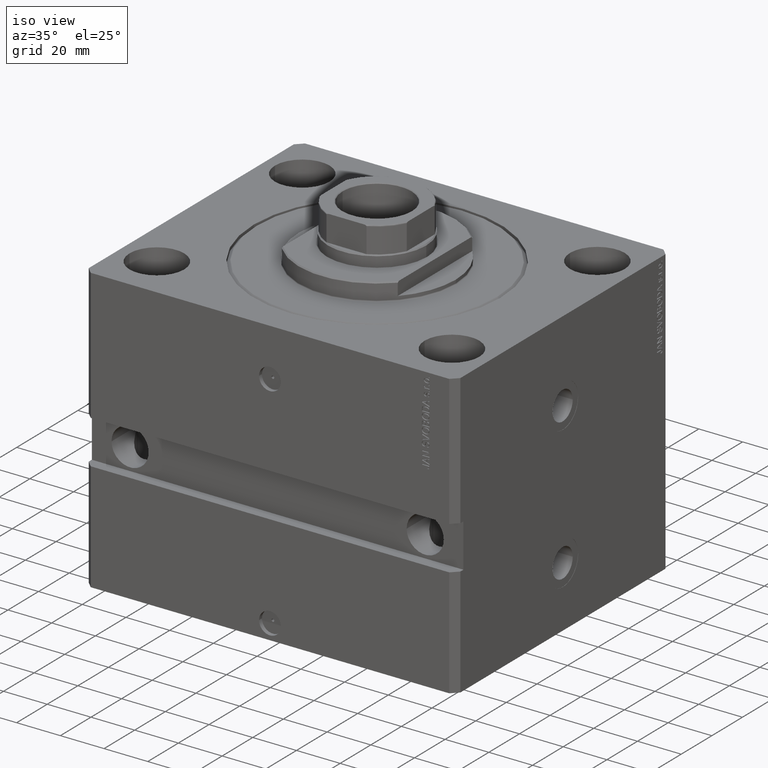
[diagram: clean part render]
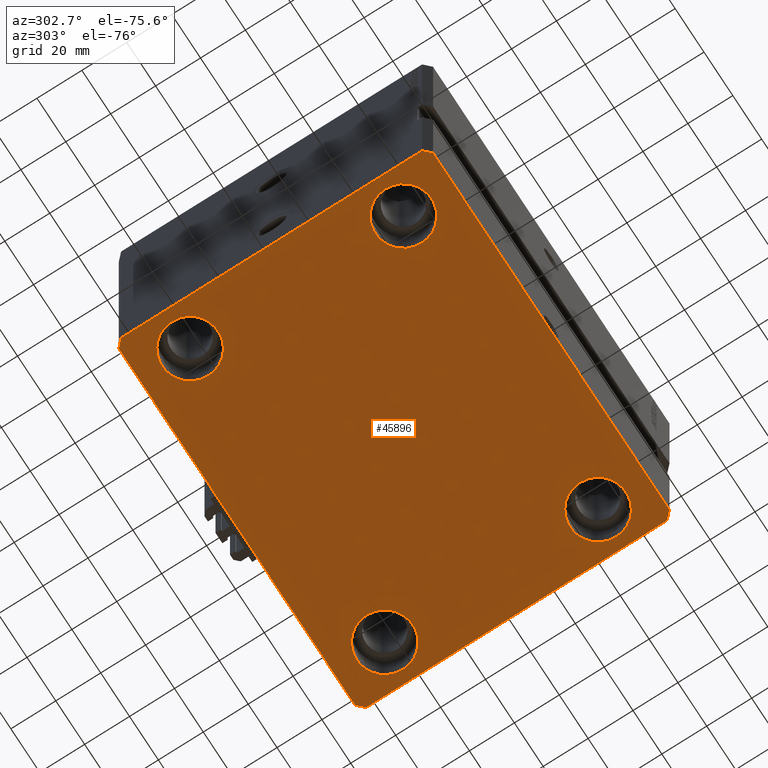
[diagram: tour spotlight — one face highlighted and labeled with its STEP entity id]
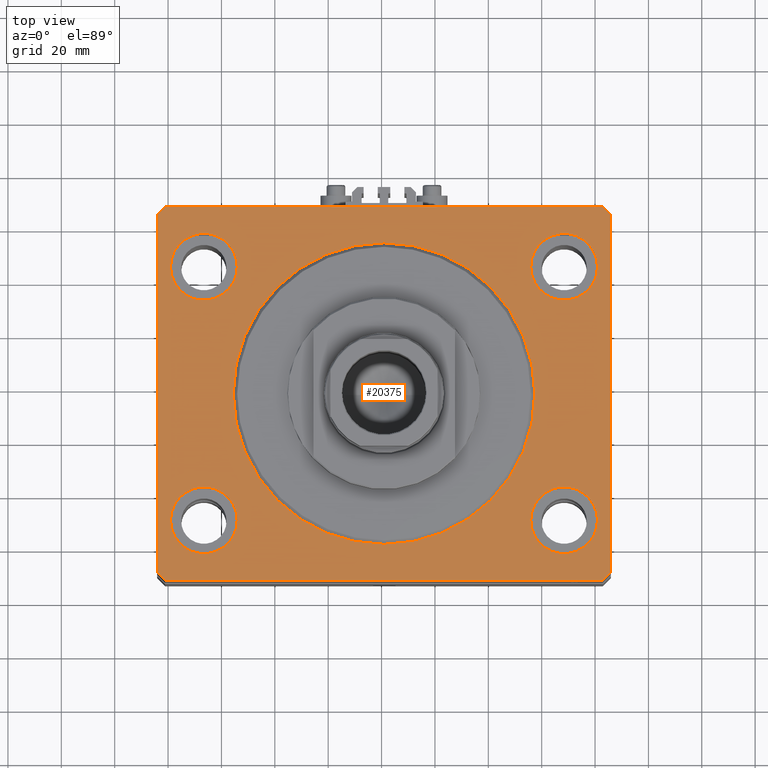
[diagram: tour spotlight — one face highlighted and labeled with its STEP entity id]
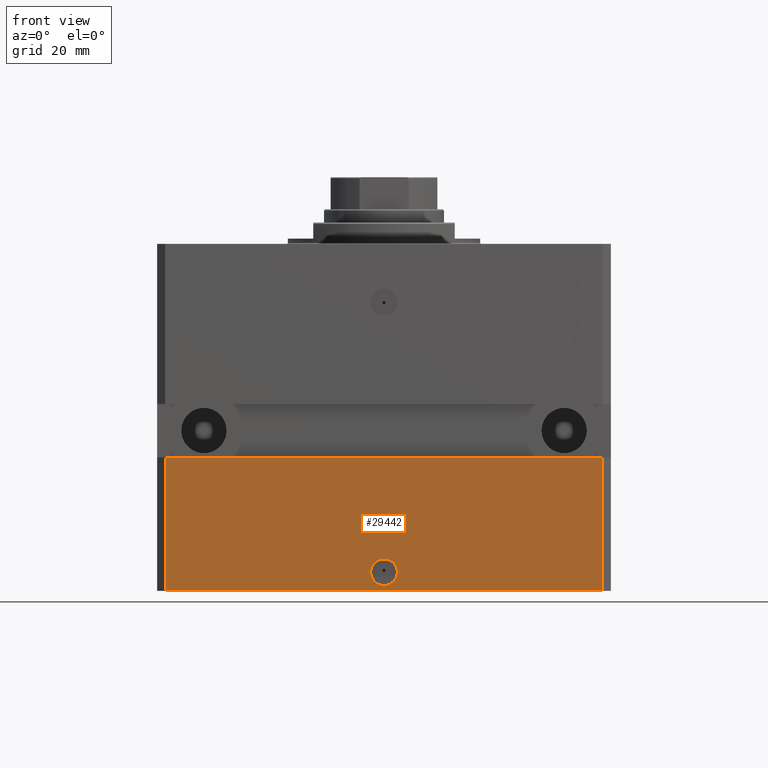
[diagram: tour spotlight — one face highlighted and labeled with its STEP entity id]
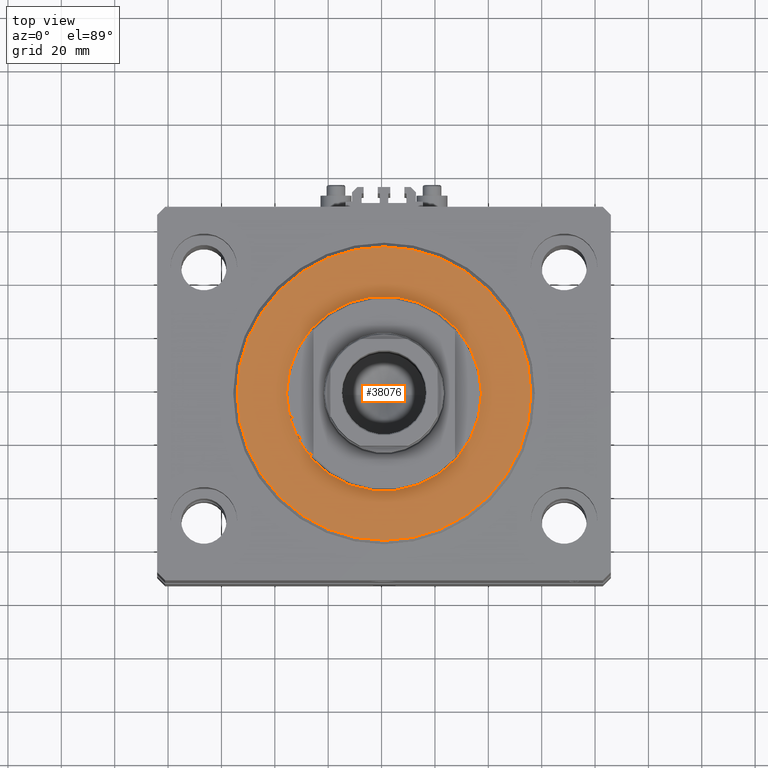
[diagram: tour spotlight — one face highlighted and labeled with its STEP entity id]
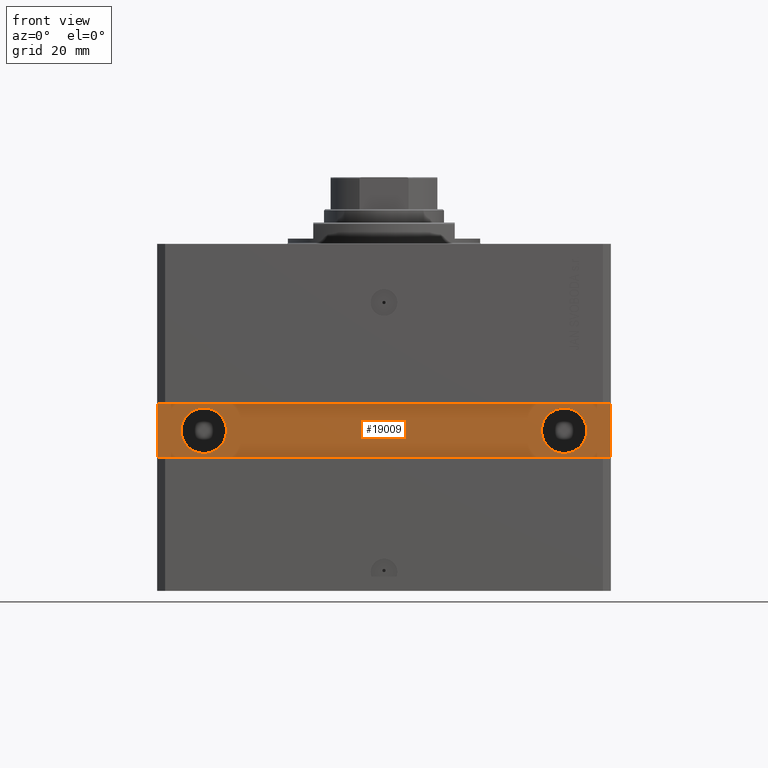
[diagram: tour spotlight — one face highlighted and labeled with its STEP entity id]
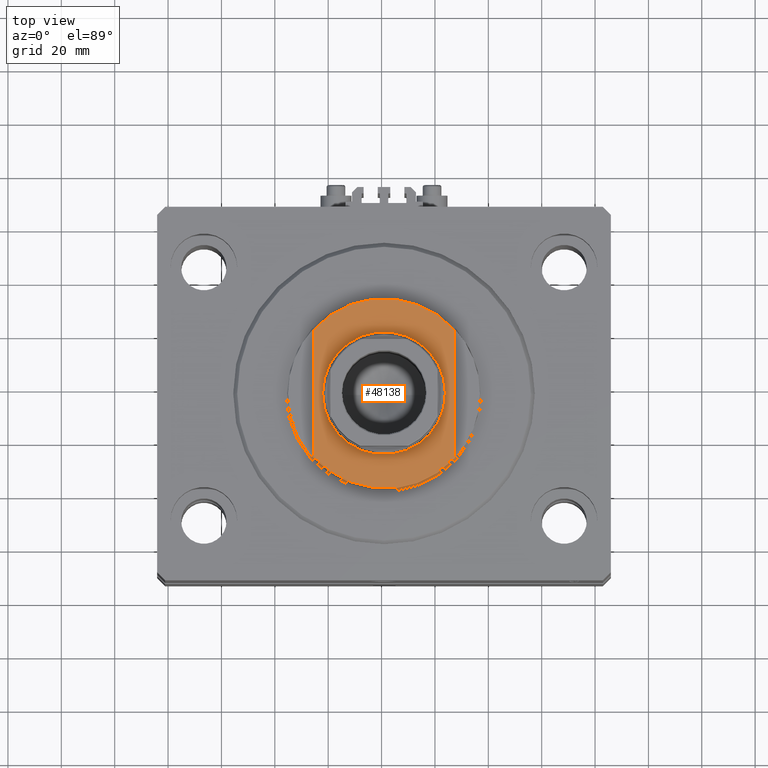
[diagram: tour spotlight — one face highlighted and labeled with its STEP entity id]
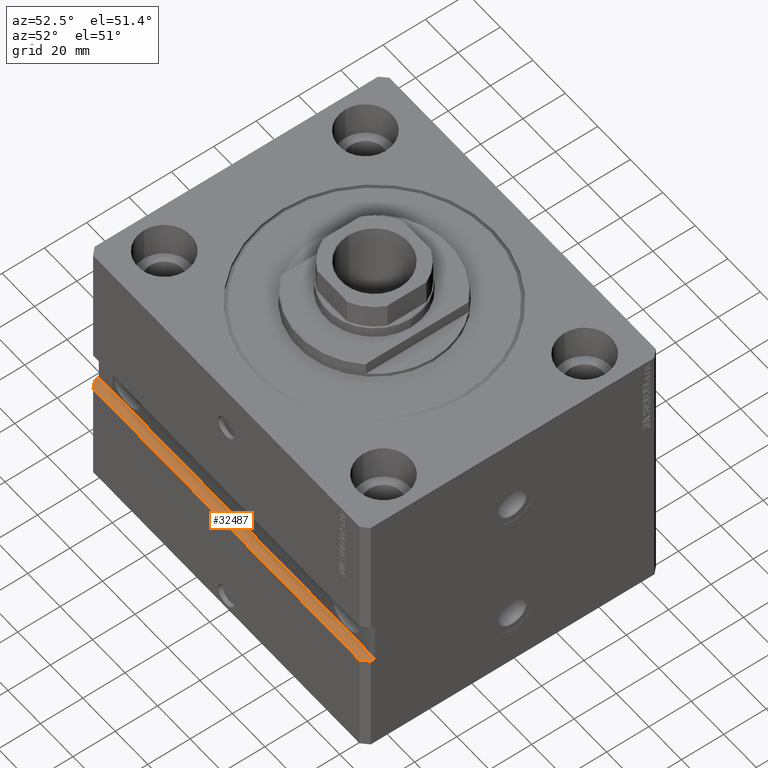
[diagram: tour spotlight — one face highlighted and labeled with its STEP entity id]
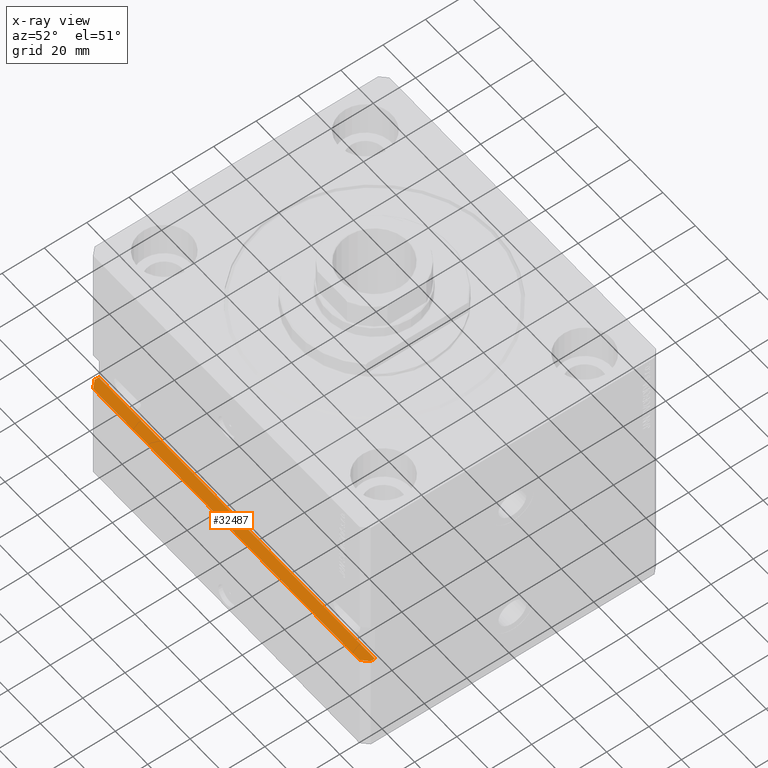
[diagram: x-ray of the same camera — body ghosted, this tour face saturated]
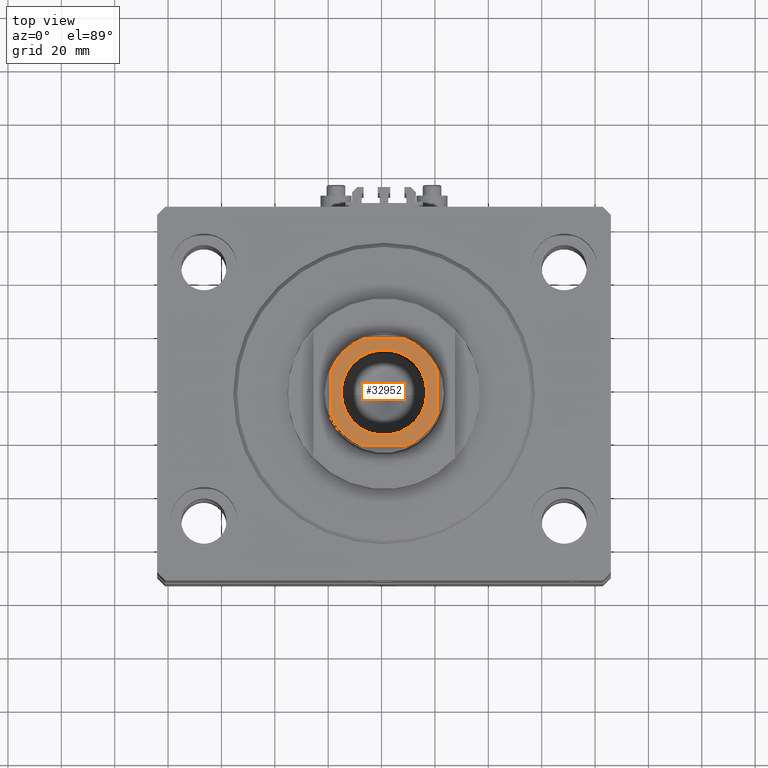
[diagram: tour spotlight — one face highlighted and labeled with its STEP entity id]
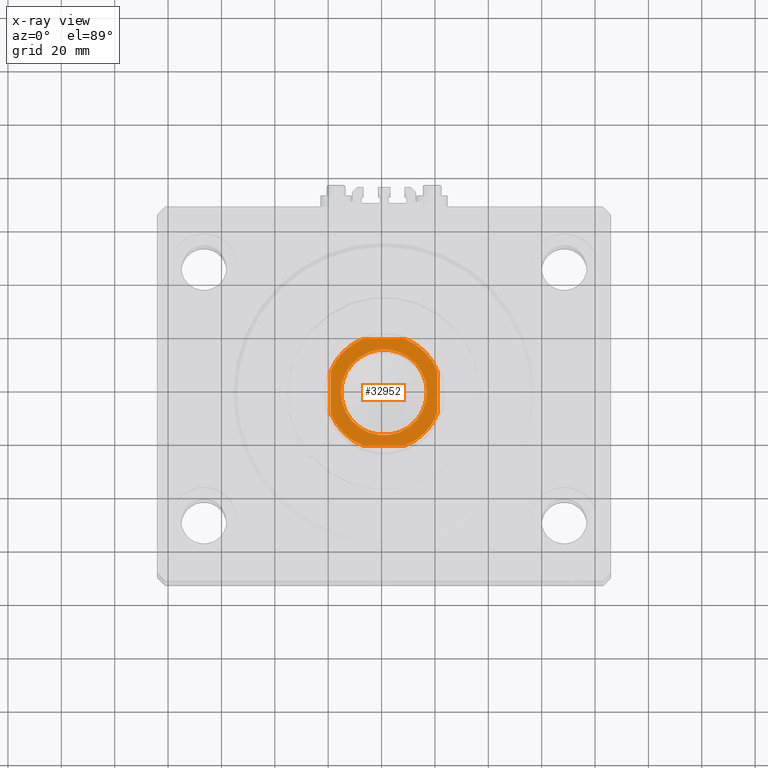
[diagram: x-ray of the same camera — body ghosted, this tour face saturated]
A machine part: a face-by-face anatomy tour. The part has 1121 B-rep faces; the first image is the clean iso view, then the 8 largest visible faces are spotlighted one at a time (largest first), each with its STEP entity span.

Face 1 — auxiliary view, entity #45896. In plain terms, the highlighted planar face has unit normal (0, 0, 1).
Definition (entity closure, byte-faithful):
#54 = VECTOR ( 'NONE', #11263, 1000.000000000000000 ) ;
#225 = CARTESIAN_POINT ( 'NONE',  ( -67.50000000000000000, -47.50000000000000000, -130.0000000000000000 ) ) ;
#262 = VERTEX_POINT ( 'NONE', #35859 ) ;
#365 = CARTESIAN_POINT ( 'NONE',  ( -67.50000000000000000, -47.50000000000000000, -130.0000000000000000 ) ) ;
#528 = CARTESIAN_POINT ( 'NONE',  ( -85.00000000000001421, -67.00000000000000000, -130.0000000000000000 ) ) ;
#529 = VERTEX_POINT ( 'NONE', #8075 ) ;
#537 = CARTESIAN_POINT ( 'NONE',  ( 80.00000000000000000, 47.50000000000001421, -130.0000000000000000 ) ) ;
#1723 = LINE ( 'NONE', #28443, #15962 ) ;
#1796 = ORIENTED_EDGE ( 'NONE', *, *, #16971, .F. ) ;
#1815 = ORIENTED_EDGE ( 'NONE', *, *, #18923, .F. ) ;
#2213 = CARTESIAN_POINT ( 'NONE',  ( 55.00000000000000711, -47.50000000000000000, -130.0000000000000000 ) ) ;
#2248 = VERTEX_POINT ( 'NONE', #34171 ) ;
#2395 = DIRECTION ( 'NONE',  ( 1.000000000000000000, 0.000000000000000000, 0.000000000000000000 ) ) ;
#3019 = EDGE_CURVE ( 'NONE', #38384, #14562, #7381, .T. ) ;
#3117 = CARTESIAN_POINT ( 'NONE',  ( -85.00000000000000000, 67.00000000000000000, -130.0000000000000000 ) ) ;
#3172 = ORIENTED_EDGE ( 'NONE', *, *, #16748, .T. ) ;
#4121 = CARTESIAN_POINT ( 'NONE',  ( -55.00000000000000711, 47.50000000000000000, -130.0000000000000000 ) ) ;
#4420 = CIRCLE ( 'NONE', #26577, 12.49999999999999645 ) ;
#5284 = VECTOR ( 'NONE', #23640, 1000.000000000000000 ) ;
#5480 = ORIENTED_EDGE ( 'NONE', *, *, #38847, .F. ) ;
#5676 = DIRECTION ( 'NONE',  ( -0.000000000000000000, -0.000000000000000000, 1.000000000000000000 ) ) ;
#5701 = VECTOR ( 'NONE', #41313, 1000.000000000000000 ) ;
#5950 = ORIENTED_EDGE ( 'NONE', *, *, #46362, .T. ) ;
#6767 = CIRCLE ( 'NONE', #21773, 12.49999999999999645 ) ;
#7104 = CARTESIAN_POINT ( 'NONE',  ( 0.000000000000000000, 0.000000000000000000, -130.0000000000000000 ) ) ;
#7287 = CARTESIAN_POINT ( 'NONE',  ( 67.50000000000000000, -47.50000000000000000, -130.0000000000000000 ) ) ;
#7381 = LINE ( 'NONE', #44279, #5701 ) ;
#7791 = LINE ( 'NONE', #3117, #54 ) ;
#7896 = CIRCLE ( 'NONE', #37967, 12.49999999999999645 ) ;
#8075 = CARTESIAN_POINT ( 'NONE',  ( -82.00000000000001421, -70.00000000000000000, -130.0000000000000000 ) ) ;
#8341 = AXIS2_PLACEMENT_3D ( 'NONE', #7287, #11753, #48886 ) ;
#8659 = DIRECTION ( 'NONE',  ( 3.935492064902608811E-15, 1.000000000000000000, 0.000000000000000000 ) ) ;
#9154 = EDGE_LOOP ( 'NONE', ( #28245, #15486 ) ) ;
#9644 = DIRECTION ( 'NONE',  ( 1.000000000000000000, 0.000000000000000000, 0.000000000000000000 ) ) ;
#10348 = DIRECTION ( 'NONE',  ( -0.000000000000000000, -0.000000000000000000, 1.000000000000000000 ) ) ;
#10376 = DIRECTION ( 'NONE',  ( -0.7071067811865344721, 0.7071067811865606734, 0.000000000000000000 ) ) ;
#10500 = CARTESIAN_POINT ( 'NONE',  ( 80.00000000000000000, -47.50000000000000000, -130.0000000000000000 ) ) ;
#10831 = FACE_OUTER_BOUND ( 'NONE', #48913, .T. ) ;
#11263 = DIRECTION ( 'NONE',  ( -1.035655806553317576E-16, -1.000000000000000000, 0.000000000000000000 ) ) ;
#11491 = CARTESIAN_POINT ( 'NONE',  ( -55.00000000000000711, -47.50000000000000000, -130.0000000000000000 ) ) ;
#11494 = AXIS2_PLACEMENT_3D ( 'NONE', #7104, #33123, #29394 ) ;
#11690 = ORIENTED_EDGE ( 'NONE', *, *, #21750, .F. ) ;
#11753 = DIRECTION ( 'NONE',  ( -0.000000000000000000, -0.000000000000000000, 1.000000000000000000 ) ) ;
#11892 = DIRECTION ( 'NONE',  ( 0.7071067811865474617, -0.7071067811865474617, 0.000000000000000000 ) ) ;
#12136 = VERTEX_POINT ( 'NONE', #10500 ) ;
#12792 = EDGE_CURVE ( 'NONE', #20377, #38384, #41323, .T. ) ;
#12884 = DIRECTION ( 'NONE',  ( 1.000000000000000000, 0.000000000000000000, 0.000000000000000000 ) ) ;
#14045 = FACE_BOUND ( 'NONE', #15699, .T. ) ;
#14117 = EDGE_CURVE ( 'NONE', #28733, #262, #44167, .T. ) ;
#14298 = EDGE_LOOP ( 'NONE', ( #19418, #21834 ) ) ;
#14459 = DIRECTION ( 'NONE',  ( -0.000000000000000000, -0.000000000000000000, 1.000000000000000000 ) ) ;
#14562 = VERTEX_POINT ( 'NONE', #46310 ) ;
#15060 = CARTESIAN_POINT ( 'NONE',  ( 85.00000000000055422, 66.99999999999997158, -130.0000000000000000 ) ) ;
#15062 = VERTEX_POINT ( 'NONE', #44004 ) ;
#15418 = VECTOR ( 'NONE', #8659, 1000.000000000000000 ) ;
#15486 = ORIENTED_EDGE ( 'NONE', *, *, #29185, .T. ) ;
#15699 = EDGE_LOOP ( 'NONE', ( #5950, #17396 ) ) ;
#15892 = ORIENTED_EDGE ( 'NONE', *, *, #17370, .F. ) ;
#15962 = VECTOR ( 'NONE', #31927, 1000.000000000000000 ) ;
#16236 = EDGE_LOOP ( 'NONE', ( #3172, #48843 ) ) ;
#16595 = VECTOR ( 'NONE', #32887, 1000.000000000000114 ) ;
#16748 = EDGE_CURVE ( 'NONE', #48947, #41347, #7896, .T. ) ;
#16971 = EDGE_CURVE ( 'NONE', #14562, #15062, #18014, .T. ) ;
#17370 = EDGE_CURVE ( 'NONE', #15062, #2248, #7791, .T. ) ;
#17396 = ORIENTED_EDGE ( 'NONE', *, *, #36879, .T. ) ;
#18003 = PLANE ( 'NONE',  #11494 ) ;
#18014 = LINE ( 'NONE', #33133, #16595 ) ;
#18518 = CARTESIAN_POINT ( 'NONE',  ( 82.00000000000001421, -70.00000000000000000, -130.0000000000000000 ) ) ;
#18923 = EDGE_CURVE ( 'NONE', #2248, #529, #34423, .T. ) ;
#19418 = ORIENTED_EDGE ( 'NONE', *, *, #22028, .T. ) ;
#20377 = VERTEX_POINT ( 'NONE', #37473 ) ;
#20771 = VERTEX_POINT ( 'NONE', #18518 ) ;
#21215 = AXIS2_PLACEMENT_3D ( 'NONE', #365, #14459, #22859 ) ;
#21240 = DIRECTION ( 'NONE',  ( 1.000000000000000000, 0.000000000000000000, 0.000000000000000000 ) ) ;
#21750 = EDGE_CURVE ( 'NONE', #529, #20771, #1723, .T. ) ;
#21773 = AXIS2_PLACEMENT_3D ( 'NONE', #47024, #5676, #9644 ) ;
#21834 = ORIENTED_EDGE ( 'NONE', *, *, #14117, .T. ) ;
#22028 = EDGE_CURVE ( 'NONE', #262, #28733, #35771, .T. ) ;
#22859 = DIRECTION ( 'NONE',  ( 1.000000000000000000, 0.000000000000000000, 0.000000000000000000 ) ) ;
#23513 = LINE ( 'NONE', #46291, #15418 ) ;
#23640 = DIRECTION ( 'NONE',  ( 0.7071067811865459074, 0.7071067811865491270, 0.000000000000000000 ) ) ;
#25122 = VERTEX_POINT ( 'NONE', #43662 ) ;
#26467 = CARTESIAN_POINT ( 'NONE',  ( 67.50000000000000000, 47.50000000000001421, -130.0000000000000000 ) ) ;
#26577 = AXIS2_PLACEMENT_3D ( 'NONE', #36400, #39870, #12884 ) ;
#28245 = ORIENTED_EDGE ( 'NONE', *, *, #33570, .T. ) ;
#28384 = DIRECTION ( 'NONE',  ( -0.000000000000000000, -0.000000000000000000, 1.000000000000000000 ) ) ;
#28443 = CARTESIAN_POINT ( 'NONE',  ( -82.00000000000001421, -70.00000000000000000, -130.0000000000000000 ) ) ;
#28733 = VERTEX_POINT ( 'NONE', #11491 ) ;
#29144 = FACE_BOUND ( 'NONE', #16236, .T. ) ;
#29185 = EDGE_CURVE ( 'NONE', #38004, #32632, #33532, .T. ) ;
#29394 = DIRECTION ( 'NONE',  ( 1.000000000000000000, 0.000000000000000000, -0.000000000000000000 ) ) ;
#29650 = ORIENTED_EDGE ( 'NONE', *, *, #41315, .F. ) ;
#29658 = CARTESIAN_POINT ( 'NONE',  ( -67.50000000000000000, 47.50000000000000000, -130.0000000000000000 ) ) ;
#31927 = DIRECTION ( 'NONE',  ( 1.000000000000000000, 0.000000000000000000, 0.000000000000000000 ) ) ;
#32632 = VERTEX_POINT ( 'NONE', #37075 ) ;
#32887 = DIRECTION ( 'NONE',  ( -0.7071067811865474617, -0.7071067811865474617, 0.000000000000000000 ) ) ;
#32894 = AXIS2_PLACEMENT_3D ( 'NONE', #29658, #10348, #21240 ) ;
#33123 = DIRECTION ( 'NONE',  ( 0.000000000000000000, 0.000000000000000000, 1.000000000000000000 ) ) ;
#33133 = CARTESIAN_POINT ( 'NONE',  ( -82.00000000000000000, 70.00000000000000000, -130.0000000000000000 ) ) ;
#33240 = ORIENTED_EDGE ( 'NONE', *, *, #3019, .F. ) ;
#33532 = CIRCLE ( 'NONE', #41449, 12.49999999999999645 ) ;
#33570 = EDGE_CURVE ( 'NONE', #32632, #38004, #48682, .T. ) ;
#34171 = CARTESIAN_POINT ( 'NONE',  ( -85.00000000000001421, -67.00000000000000000, -130.0000000000000000 ) ) ;
#34423 = LINE ( 'NONE', #528, #41983 ) ;
#35184 = VERTEX_POINT ( 'NONE', #2213 ) ;
#35771 = CIRCLE ( 'NONE', #38136, 12.49999999999999645 ) ;
#35787 = CARTESIAN_POINT ( 'NONE',  ( 82.00000000000001421, -70.00000000000000000, -130.0000000000000000 ) ) ;
#35859 = CARTESIAN_POINT ( 'NONE',  ( -80.00000000000000000, -47.50000000000000000, -130.0000000000000000 ) ) ;
#36235 = VECTOR ( 'NONE', #10376, 1000.000000000000000 ) ;
#36400 = CARTESIAN_POINT ( 'NONE',  ( 67.50000000000000000, 47.50000000000001421, -130.0000000000000000 ) ) ;
#36845 = FACE_BOUND ( 'NONE', #9154, .T. ) ;
#36879 = EDGE_CURVE ( 'NONE', #12136, #35184, #6767, .T. ) ;
#37075 = CARTESIAN_POINT ( 'NONE',  ( -80.00000000000000000, 47.50000000000000000, -130.0000000000000000 ) ) ;
#37473 = CARTESIAN_POINT ( 'NONE',  ( 85.00000000000055422, 66.99999999999997158, -130.0000000000000000 ) ) ;
#37650 = DIRECTION ( 'NONE',  ( 1.000000000000000000, 0.000000000000000000, 0.000000000000000000 ) ) ;
#37967 = AXIS2_PLACEMENT_3D ( 'NONE', #26467, #41349, #37650 ) ;
#38004 = VERTEX_POINT ( 'NONE', #4121 ) ;
#38136 = AXIS2_PLACEMENT_3D ( 'NONE', #225, #28384, #2395 ) ;
#38384 = VERTEX_POINT ( 'NONE', #43827 ) ;
#38847 = EDGE_CURVE ( 'NONE', #20771, #25122, #46172, .T. ) ;
#39154 = DIRECTION ( 'NONE',  ( -0.000000000000000000, -0.000000000000000000, 1.000000000000000000 ) ) ;
#39636 = CARTESIAN_POINT ( 'NONE',  ( -67.50000000000000000, 47.50000000000000000, -130.0000000000000000 ) ) ;
#39870 = DIRECTION ( 'NONE',  ( -0.000000000000000000, -0.000000000000000000, 1.000000000000000000 ) ) ;
#40548 = CARTESIAN_POINT ( 'NONE',  ( 55.00000000000000711, 47.50000000000001421, -130.0000000000000000 ) ) ;
#40765 = CIRCLE ( 'NONE', #8341, 12.49999999999999645 ) ;
#41313 = DIRECTION ( 'NONE',  ( -1.000000000000000000, -1.692413147294439807E-16, 0.000000000000000000 ) ) ;
#41315 = EDGE_CURVE ( 'NONE', #25122, #20377, #23513, .T. ) ;
#41323 = LINE ( 'NONE', #15060, #36235 ) ;
#41347 = VERTEX_POINT ( 'NONE', #537 ) ;
#41349 = DIRECTION ( 'NONE',  ( -0.000000000000000000, -0.000000000000000000, 1.000000000000000000 ) ) ;
#41449 = AXIS2_PLACEMENT_3D ( 'NONE', #39636, #39154, #43103 ) ;
#41983 = VECTOR ( 'NONE', #11892, 1000.000000000000114 ) ;
#42157 = ORIENTED_EDGE ( 'NONE', *, *, #12792, .F. ) ;
#43103 = DIRECTION ( 'NONE',  ( 1.000000000000000000, 0.000000000000000000, 0.000000000000000000 ) ) ;
#43662 = CARTESIAN_POINT ( 'NONE',  ( 85.00000000000001421, -66.99999999999998579, -130.0000000000000000 ) ) ;
#43827 = CARTESIAN_POINT ( 'NONE',  ( 82.00000000000059686, 70.00000000000002842, -130.0000000000000000 ) ) ;
#44004 = CARTESIAN_POINT ( 'NONE',  ( -85.00000000000000000, 67.00000000000000000, -130.0000000000000000 ) ) ;
#44167 = CIRCLE ( 'NONE', #21215, 12.49999999999999645 ) ;
#44279 = CARTESIAN_POINT ( 'NONE',  ( 82.00000000000059686, 70.00000000000002842, -130.0000000000000000 ) ) ;
#45896 = ADVANCED_FACE ( 'NONE', ( #47959, #14045, #29144, #36845, #10831 ), #18003, .F. ) ;
#46172 = LINE ( 'NONE', #35787, #5284 ) ;
#46291 = CARTESIAN_POINT ( 'NONE',  ( 85.00000000000001421, -66.99999999999998579, -130.0000000000000000 ) ) ;
#46310 = CARTESIAN_POINT ( 'NONE',  ( -82.00000000000000000, 70.00000000000000000, -130.0000000000000000 ) ) ;
#46362 = EDGE_CURVE ( 'NONE', #35184, #12136, #40765, .T. ) ;
#47024 = CARTESIAN_POINT ( 'NONE',  ( 67.50000000000000000, -47.50000000000000000, -130.0000000000000000 ) ) ;
#47534 = EDGE_CURVE ( 'NONE', #41347, #48947, #4420, .T. ) ;
#47959 = FACE_BOUND ( 'NONE', #14298, .T. ) ;
#48682 = CIRCLE ( 'NONE', #32894, 12.49999999999999645 ) ;
#48843 = ORIENTED_EDGE ( 'NONE', *, *, #47534, .T. ) ;
#48886 = DIRECTION ( 'NONE',  ( 1.000000000000000000, 0.000000000000000000, 0.000000000000000000 ) ) ;
#48913 = EDGE_LOOP ( 'NONE', ( #33240, #42157, #29650, #5480, #11690, #1815, #15892, #1796 ) ) ;
#48947 = VERTEX_POINT ( 'NONE', #40548 ) ;

Face 2 — top view, entity #20375. In plain terms, the highlighted planar face has unit normal (0, 0, 1).
Definition (entity closure, byte-faithful):
#412 = CARTESIAN_POINT ( 'NONE',  ( -67.50000000000000000, -47.50000000000000000, 0.000000000000000000 ) ) ;
#534 = AXIS2_PLACEMENT_3D ( 'NONE', #28858, #9323, #28374 ) ;
#1425 = CARTESIAN_POINT ( 'NONE',  ( -82.00000000000001421, -70.00000000000000000, 0.000000000000000000 ) ) ;
#1464 = CARTESIAN_POINT ( 'NONE',  ( 85.00000000000001421, -66.99999999999998579, 0.000000000000000000 ) ) ;
#1621 = DIRECTION ( 'NONE',  ( 0.000000000000000000, 0.000000000000000000, 1.000000000000000000 ) ) ;
#2238 = ORIENTED_EDGE ( 'NONE', *, *, #39210, .T. ) ;
#2404 = CARTESIAN_POINT ( 'NONE',  ( 85.00000000000055422, 66.99999999999997158, 0.000000000000000000 ) ) ;
#2482 = EDGE_CURVE ( 'NONE', #44134, #6214, #21924, .T. ) ;
#2532 = CIRCLE ( 'NONE', #19137, 56.50000000000000711 ) ;
#3435 = DIRECTION ( 'NONE',  ( 1.000000000000000000, 0.000000000000000000, 0.000000000000000000 ) ) ;
#3777 = CARTESIAN_POINT ( 'NONE',  ( 82.00000000000059686, 70.00000000000002842, 0.000000000000000000 ) ) ;
#3796 = DIRECTION ( 'NONE',  ( 0.000000000000000000, 0.000000000000000000, 1.000000000000000000 ) ) ;
#3883 = ORIENTED_EDGE ( 'NONE', *, *, #5927, .T. ) ;
#3948 = ORIENTED_EDGE ( 'NONE', *, *, #6309, .F. ) ;
#4166 = DIRECTION ( 'NONE',  ( 1.000000000000000000, 0.000000000000000000, 0.000000000000000000 ) ) ;
#4265 = CIRCLE ( 'NONE', #35082, 12.49999999999999645 ) ;
#4824 = DIRECTION ( 'NONE',  ( 1.000000000000000000, 0.000000000000000000, 0.000000000000000000 ) ) ;
#5078 = VERTEX_POINT ( 'NONE', #29011 ) ;
#5104 = VECTOR ( 'NONE', #43505, 1000.000000000000000 ) ;
#5212 = VECTOR ( 'NONE', #47914, 1000.000000000000000 ) ;
#5576 = VERTEX_POINT ( 'NONE', #35548 ) ;
#5616 = VERTEX_POINT ( 'NONE', #33789 ) ;
#5843 = CARTESIAN_POINT ( 'NONE',  ( 0.000000000000000000, 0.000000000000000000, 0.000000000000000000 ) ) ;
#5927 = EDGE_CURVE ( 'NONE', #42755, #46676, #30983, .T. ) ;
#6111 = CIRCLE ( 'NONE', #13989, 12.49999999999999645 ) ;
#6214 = VERTEX_POINT ( 'NONE', #1425 ) ;
#6229 = CARTESIAN_POINT ( 'NONE',  ( -56.50000000000000711, 6.919254415182546126E-15, 0.000000000000000000 ) ) ;
#6309 = EDGE_CURVE ( 'NONE', #29455, #5616, #4265, .T. ) ;
#6768 = PLANE ( 'NONE',  #30164 ) ;
#6826 = CARTESIAN_POINT ( 'NONE',  ( -85.00000000000001421, -67.00000000000000000, 0.000000000000000000 ) ) ;
#6831 = CIRCLE ( 'NONE', #534, 56.50000000000000711 ) ;
#6895 = CARTESIAN_POINT ( 'NONE',  ( -67.50000000000000000, -47.50000000000000000, 0.000000000000000000 ) ) ;
#7179 = LINE ( 'NONE', #34164, #16343 ) ;
#7492 = LINE ( 'NONE', #19116, #5212 ) ;
#7659 = ORIENTED_EDGE ( 'NONE', *, *, #44104, .F. ) ;
#8240 = EDGE_CURVE ( 'NONE', #13600, #42755, #29376, .T. ) ;
#8799 = ORIENTED_EDGE ( 'NONE', *, *, #17737, .F. ) ;
#8812 = AXIS2_PLACEMENT_3D ( 'NONE', #13741, #40011, #14235 ) ;
#9105 = VERTEX_POINT ( 'NONE', #34039 ) ;
#9126 = CIRCLE ( 'NONE', #29704, 12.49999999999999645 ) ;
#9248 = EDGE_LOOP ( 'NONE', ( #16021, #45570 ) ) ;
#9323 = DIRECTION ( 'NONE',  ( 0.000000000000000000, 0.000000000000000000, 1.000000000000000000 ) ) ;
#9818 = DIRECTION ( 'NONE',  ( 1.000000000000000000, 0.000000000000000000, 0.000000000000000000 ) ) ;
#9883 = DIRECTION ( 'NONE',  ( 1.000000000000000000, 0.000000000000000000, 0.000000000000000000 ) ) ;
#10305 = DIRECTION ( 'NONE',  ( 0.000000000000000000, 0.000000000000000000, 1.000000000000000000 ) ) ;
#10471 = DIRECTION ( 'NONE',  ( 1.000000000000000000, 0.000000000000000000, 0.000000000000000000 ) ) ;
#10727 = FACE_BOUND ( 'NONE', #31490, .T. ) ;
#11191 = CARTESIAN_POINT ( 'NONE',  ( 85.00000000000001421, -66.99999999999998579, 0.000000000000000000 ) ) ;
#11229 = CIRCLE ( 'NONE', #42044, 12.49999999999999645 ) ;
#11440 = DIRECTION ( 'NONE',  ( 3.935492064902608811E-15, 1.000000000000000000, 0.000000000000000000 ) ) ;
#11675 = ORIENTED_EDGE ( 'NONE', *, *, #11820, .F. ) ;
#11820 = EDGE_CURVE ( 'NONE', #40445, #5078, #6111, .T. ) ;
#12459 = CARTESIAN_POINT ( 'NONE',  ( 55.00000000000000711, -47.50000000000000000, 0.000000000000000000 ) ) ;
#12482 = VERTEX_POINT ( 'NONE', #6229 ) ;
#12557 = DIRECTION ( 'NONE',  ( 0.000000000000000000, 0.000000000000000000, 1.000000000000000000 ) ) ;
#13100 = EDGE_LOOP ( 'NONE', ( #8799, #17854 ) ) ;
#13600 = VERTEX_POINT ( 'NONE', #18059 ) ;
#13741 = CARTESIAN_POINT ( 'NONE',  ( 67.50000000000000000, 47.50000000000001421, 0.000000000000000000 ) ) ;
#13989 = AXIS2_PLACEMENT_3D ( 'NONE', #33104, #10305, #9818 ) ;
#14185 = CARTESIAN_POINT ( 'NONE',  ( 67.50000000000000000, -47.50000000000000000, 0.000000000000000000 ) ) ;
#14235 = DIRECTION ( 'NONE',  ( 1.000000000000000000, 0.000000000000000000, 0.000000000000000000 ) ) ;
#15488 = DIRECTION ( 'NONE',  ( 0.000000000000000000, 0.000000000000000000, 1.000000000000000000 ) ) ;
#15638 = DIRECTION ( 'NONE',  ( -1.000000000000000000, -1.692413147294439807E-16, 0.000000000000000000 ) ) ;
#15974 = DIRECTION ( 'NONE',  ( 0.000000000000000000, 0.000000000000000000, 1.000000000000000000 ) ) ;
#15982 = EDGE_CURVE ( 'NONE', #5078, #40445, #16562, .T. ) ;
#16021 = ORIENTED_EDGE ( 'NONE', *, *, #31609, .F. ) ;
#16127 = VECTOR ( 'NONE', #17162, 1000.000000000000114 ) ;
#16343 = VECTOR ( 'NONE', #48528, 1000.000000000000000 ) ;
#16562 = CIRCLE ( 'NONE', #30813, 12.49999999999999645 ) ;
#16634 = EDGE_CURVE ( 'NONE', #6214, #37898, #39615, .T. ) ;
#17162 = DIRECTION ( 'NONE',  ( -0.7071067811865474617, -0.7071067811865474617, 0.000000000000000000 ) ) ;
#17207 = CARTESIAN_POINT ( 'NONE',  ( 67.50000000000000000, -47.50000000000000000, 0.000000000000000000 ) ) ;
#17296 = DIRECTION ( 'NONE',  ( 0.7071067811865474617, -0.7071067811865474617, 0.000000000000000000 ) ) ;
#17662 = ORIENTED_EDGE ( 'NONE', *, *, #21006, .F. ) ;
#17737 = EDGE_CURVE ( 'NONE', #44155, #36120, #34063, .T. ) ;
#17854 = ORIENTED_EDGE ( 'NONE', *, *, #37151, .F. ) ;
#18059 = CARTESIAN_POINT ( 'NONE',  ( 85.00000000000055422, 66.99999999999997158, 0.000000000000000000 ) ) ;
#18143 = FACE_BOUND ( 'NONE', #9248, .T. ) ;
#18572 = AXIS2_PLACEMENT_3D ( 'NONE', #20898, #15974, #42476 ) ;
#19099 = CIRCLE ( 'NONE', #8812, 12.49999999999999645 ) ;
#19116 = CARTESIAN_POINT ( 'NONE',  ( 82.00000000000001421, -70.00000000000000000, 0.000000000000000000 ) ) ;
#19137 = AXIS2_PLACEMENT_3D ( 'NONE', #5843, #12557, #47419 ) ;
#19403 = ORIENTED_EDGE ( 'NONE', *, *, #8240, .T. ) ;
#19460 = EDGE_LOOP ( 'NONE', ( #3883, #31317, #2238, #21705, #26858, #25282, #35188, #19403 ) ) ;
#20375 = ADVANCED_FACE ( 'NONE', ( #10727, #25825, #18143, #22595, #30270, #40937 ), #6768, .T. ) ;
#20798 = EDGE_CURVE ( 'NONE', #5616, #29455, #11229, .T. ) ;
#20807 = CARTESIAN_POINT ( 'NONE',  ( -82.00000000000000000, 70.00000000000000000, 0.000000000000000000 ) ) ;
#20898 = CARTESIAN_POINT ( 'NONE',  ( 67.50000000000000000, 47.50000000000001421, 0.000000000000000000 ) ) ;
#21006 = EDGE_CURVE ( 'NONE', #42558, #12482, #2532, .T. ) ;
#21705 = ORIENTED_EDGE ( 'NONE', *, *, #2482, .T. ) ;
#21924 = LINE ( 'NONE', #6826, #42859 ) ;
#22595 = FACE_BOUND ( 'NONE', #30668, .T. ) ;
#22928 = CARTESIAN_POINT ( 'NONE',  ( -67.50000000000000000, 47.50000000000000000, 0.000000000000000000 ) ) ;
#23504 = EDGE_CURVE ( 'NONE', #30341, #13600, #45103, .T. ) ;
#23717 = VECTOR ( 'NONE', #9883, 1000.000000000000000 ) ;
#23977 = CARTESIAN_POINT ( 'NONE',  ( 82.00000000000059686, 70.00000000000002842, 0.000000000000000000 ) ) ;
#24019 = EDGE_CURVE ( 'NONE', #9105, #33224, #19099, .T. ) ;
#24172 = CARTESIAN_POINT ( 'NONE',  ( -85.00000000000001421, -67.00000000000000000, 0.000000000000000000 ) ) ;
#24438 = CARTESIAN_POINT ( 'NONE',  ( 82.00000000000001421, -70.00000000000000000, 0.000000000000000000 ) ) ;
#24442 = ORIENTED_EDGE ( 'NONE', *, *, #20798, .F. ) ;
#24605 = VECTOR ( 'NONE', #11440, 1000.000000000000000 ) ;
#25282 = ORIENTED_EDGE ( 'NONE', *, *, #33925, .T. ) ;
#25645 = EDGE_LOOP ( 'NONE', ( #17662, #7659 ) ) ;
#25825 = FACE_BOUND ( 'NONE', #13100, .T. ) ;
#26058 = CARTESIAN_POINT ( 'NONE',  ( 0.000000000000000000, 0.000000000000000000, 0.000000000000000000 ) ) ;
#26858 = ORIENTED_EDGE ( 'NONE', *, *, #16634, .T. ) ;
#27127 = DIRECTION ( 'NONE',  ( 1.000000000000000000, 0.000000000000000000, 0.000000000000000000 ) ) ;
#28374 = DIRECTION ( 'NONE',  ( 1.000000000000000000, 0.000000000000000000, 0.000000000000000000 ) ) ;
#28858 = CARTESIAN_POINT ( 'NONE',  ( 0.000000000000000000, 0.000000000000000000, 0.000000000000000000 ) ) ;
#29011 = CARTESIAN_POINT ( 'NONE',  ( -80.00000000000000000, 47.50000000000000000, 0.000000000000000000 ) ) ;
#29376 = LINE ( 'NONE', #2404, #5104 ) ;
#29455 = VERTEX_POINT ( 'NONE', #39082 ) ;
#29704 = AXIS2_PLACEMENT_3D ( 'NONE', #17207, #1621, #4166 ) ;
#29732 = EDGE_CURVE ( 'NONE', #46676, #5576, #35994, .T. ) ;
#30164 = AXIS2_PLACEMENT_3D ( 'NONE', #26058, #3796, #33992 ) ;
#30270 = FACE_BOUND ( 'NONE', #25645, .T. ) ;
#30341 = VERTEX_POINT ( 'NONE', #1464 ) ;
#30668 = EDGE_LOOP ( 'NONE', ( #11675, #42102 ) ) ;
#30813 = AXIS2_PLACEMENT_3D ( 'NONE', #22928, #38053, #27127 ) ;
#30983 = LINE ( 'NONE', #3777, #46911 ) ;
#31317 = ORIENTED_EDGE ( 'NONE', *, *, #29732, .T. ) ;
#31490 = EDGE_LOOP ( 'NONE', ( #3948, #24442 ) ) ;
#31609 = EDGE_CURVE ( 'NONE', #33224, #9105, #36785, .T. ) ;
#33104 = CARTESIAN_POINT ( 'NONE',  ( -67.50000000000000000, 47.50000000000000000, 0.000000000000000000 ) ) ;
#33224 = VERTEX_POINT ( 'NONE', #41086 ) ;
#33789 = CARTESIAN_POINT ( 'NONE',  ( -80.00000000000000000, -47.50000000000000000, 0.000000000000000000 ) ) ;
#33925 = EDGE_CURVE ( 'NONE', #37898, #30341, #7492, .T. ) ;
#33992 = DIRECTION ( 'NONE',  ( 1.000000000000000000, 0.000000000000000000, -0.000000000000000000 ) ) ;
#34039 = CARTESIAN_POINT ( 'NONE',  ( 55.00000000000000711, 47.50000000000001421, 0.000000000000000000 ) ) ;
#34063 = CIRCLE ( 'NONE', #41173, 12.49999999999999645 ) ;
#34164 = CARTESIAN_POINT ( 'NONE',  ( -85.00000000000000000, 67.00000000000000000, 0.000000000000000000 ) ) ;
#35082 = AXIS2_PLACEMENT_3D ( 'NONE', #412, #15488, #4824 ) ;
#35188 = ORIENTED_EDGE ( 'NONE', *, *, #23504, .T. ) ;
#35548 = CARTESIAN_POINT ( 'NONE',  ( -85.00000000000000000, 67.00000000000000000, 0.000000000000000000 ) ) ;
#35994 = LINE ( 'NONE', #36475, #16127 ) ;
#36120 = VERTEX_POINT ( 'NONE', #12459 ) ;
#36475 = CARTESIAN_POINT ( 'NONE',  ( -82.00000000000000000, 70.00000000000000000, 0.000000000000000000 ) ) ;
#36785 = CIRCLE ( 'NONE', #18572, 12.49999999999999645 ) ;
#37151 = EDGE_CURVE ( 'NONE', #36120, #44155, #9126, .T. ) ;
#37357 = DIRECTION ( 'NONE',  ( 0.000000000000000000, 0.000000000000000000, 1.000000000000000000 ) ) ;
#37898 = VERTEX_POINT ( 'NONE', #24438 ) ;
#38053 = DIRECTION ( 'NONE',  ( 0.000000000000000000, 0.000000000000000000, 1.000000000000000000 ) ) ;
#39082 = CARTESIAN_POINT ( 'NONE',  ( -55.00000000000000711, -47.50000000000000000, 0.000000000000000000 ) ) ;
#39210 = EDGE_CURVE ( 'NONE', #5576, #44134, #7179, .T. ) ;
#39615 = LINE ( 'NONE', #42833, #23717 ) ;
#40011 = DIRECTION ( 'NONE',  ( 0.000000000000000000, 0.000000000000000000, 1.000000000000000000 ) ) ;
#40445 = VERTEX_POINT ( 'NONE', #44580 ) ;
#40937 = FACE_OUTER_BOUND ( 'NONE', #19460, .T. ) ;
#41086 = CARTESIAN_POINT ( 'NONE',  ( 80.00000000000000000, 47.50000000000001421, 0.000000000000000000 ) ) ;
#41173 = AXIS2_PLACEMENT_3D ( 'NONE', #14185, #44387, #10471 ) ;
#42044 = AXIS2_PLACEMENT_3D ( 'NONE', #6895, #37357, #3435 ) ;
#42102 = ORIENTED_EDGE ( 'NONE', *, *, #15982, .F. ) ;
#42476 = DIRECTION ( 'NONE',  ( 1.000000000000000000, 0.000000000000000000, 0.000000000000000000 ) ) ;
#42558 = VERTEX_POINT ( 'NONE', #43356 ) ;
#42755 = VERTEX_POINT ( 'NONE', #23977 ) ;
#42833 = CARTESIAN_POINT ( 'NONE',  ( -82.00000000000001421, -70.00000000000000000, 0.000000000000000000 ) ) ;
#42859 = VECTOR ( 'NONE', #17296, 1000.000000000000114 ) ;
#43356 = CARTESIAN_POINT ( 'NONE',  ( 56.50000000000000711, 0.000000000000000000, 0.000000000000000000 ) ) ;
#43505 = DIRECTION ( 'NONE',  ( -0.7071067811865344721, 0.7071067811865606734, 0.000000000000000000 ) ) ;
#44104 = EDGE_CURVE ( 'NONE', #12482, #42558, #6831, .T. ) ;
#44134 = VERTEX_POINT ( 'NONE', #24172 ) ;
#44155 = VERTEX_POINT ( 'NONE', #44456 ) ;
#44387 = DIRECTION ( 'NONE',  ( 0.000000000000000000, 0.000000000000000000, 1.000000000000000000 ) ) ;
#44456 = CARTESIAN_POINT ( 'NONE',  ( 80.00000000000000000, -47.50000000000000000, 0.000000000000000000 ) ) ;
#44580 = CARTESIAN_POINT ( 'NONE',  ( -55.00000000000000711, 47.50000000000000000, 0.000000000000000000 ) ) ;
#45103 = LINE ( 'NONE', #11191, #24605 ) ;
#45570 = ORIENTED_EDGE ( 'NONE', *, *, #24019, .F. ) ;
#46676 = VERTEX_POINT ( 'NONE', #20807 ) ;
#46911 = VECTOR ( 'NONE', #15638, 1000.000000000000000 ) ;
#47419 = DIRECTION ( 'NONE',  ( 1.000000000000000000, 0.000000000000000000, 0.000000000000000000 ) ) ;
#47914 = DIRECTION ( 'NONE',  ( 0.7071067811865459074, 0.7071067811865491270, 0.000000000000000000 ) ) ;
#48528 = DIRECTION ( 'NONE',  ( -1.035655806553317576E-16, -1.000000000000000000, 0.000000000000000000 ) ) ;

Face 3 — front view, entity #29442. In plain terms, the highlighted planar face has unit normal (0, -1, 0).
Definition (entity closure, byte-faithful):
#529 = VERTEX_POINT ( 'NONE', #8075 ) ;
#1280 = VERTEX_POINT ( 'NONE', #26408 ) ;
#1691 = FACE_BOUND ( 'NONE', #6038, .T. ) ;
#1723 = LINE ( 'NONE', #28443, #15962 ) ;
#2973 = CARTESIAN_POINT ( 'NONE',  ( -82.00000000000001421, -70.00000000000000000, -130.0000000000000000 ) ) ;
#3351 = EDGE_CURVE ( 'NONE', #1280, #38263, #12850, .T. ) ;
#3739 = DIRECTION ( 'NONE',  ( 0.000000000000000000, 0.000000000000000000, 1.000000000000000000 ) ) ;
#4498 = EDGE_LOOP ( 'NONE', ( #15700, #33176, #20781, #38364 ) ) ;
#5374 = CARTESIAN_POINT ( 'NONE',  ( 0.000000000000000000, -70.00000000000000000, -123.0000000000000000 ) ) ;
#6014 = VECTOR ( 'NONE', #44801, 1000.000000000000000 ) ;
#6038 = EDGE_LOOP ( 'NONE', ( #27518, #10615 ) ) ;
#7090 = LINE ( 'NONE', #37314, #20959 ) ;
#8075 = CARTESIAN_POINT ( 'NONE',  ( -82.00000000000001421, -70.00000000000000000, -130.0000000000000000 ) ) ;
#10615 = ORIENTED_EDGE ( 'NONE', *, *, #3351, .F. ) ;
#12266 = EDGE_CURVE ( 'NONE', #38263, #1280, #38285, .T. ) ;
#12850 = CIRCLE ( 'NONE', #28629, 5.000000000000006217 ) ;
#15700 = ORIENTED_EDGE ( 'NONE', *, *, #32624, .F. ) ;
#15962 = VECTOR ( 'NONE', #31927, 1000.000000000000000 ) ;
#16145 = AXIS2_PLACEMENT_3D ( 'NONE', #38707, #42171, #19865 ) ;
#18518 = CARTESIAN_POINT ( 'NONE',  ( 82.00000000000001421, -70.00000000000000000, -130.0000000000000000 ) ) ;
#18643 = VECTOR ( 'NONE', #3739, 1000.000000000000000 ) ;
#19865 = DIRECTION ( 'NONE',  ( 1.000000000000000000, 0.000000000000000000, 0.000000000000000000 ) ) ;
#20444 = VERTEX_POINT ( 'NONE', #27761 ) ;
#20469 = DIRECTION ( 'NONE',  ( 1.000000000000000000, 0.000000000000000000, 0.000000000000000000 ) ) ;
#20771 = VERTEX_POINT ( 'NONE', #18518 ) ;
#20781 = ORIENTED_EDGE ( 'NONE', *, *, #21750, .T. ) ;
#20951 = DIRECTION ( 'NONE',  ( 1.176083712526788232E-16, -1.000000000000000000, 0.000000000000000000 ) ) ;
#20959 = VECTOR ( 'NONE', #48924, 1000.000000000000000 ) ;
#21750 = EDGE_CURVE ( 'NONE', #529, #20771, #1723, .T. ) ;
#23961 = DIRECTION ( 'NONE',  ( 0.000000000000000000, -1.000000000000000000, 0.000000000000000000 ) ) ;
#25510 = LINE ( 'NONE', #44834, #18643 ) ;
#26408 = CARTESIAN_POINT ( 'NONE',  ( -5.000000000000006217, -70.00000000000000000, -123.0000000000000000 ) ) ;
#27518 = ORIENTED_EDGE ( 'NONE', *, *, #12266, .F. ) ;
#27761 = CARTESIAN_POINT ( 'NONE',  ( 82.00000000000001421, -69.99999999999998579, -80.00000000000001421 ) ) ;
#27920 = CARTESIAN_POINT ( 'NONE',  ( -82.00000000000001421, -70.00000000000000000, -130.0000000000000000 ) ) ;
#28413 = PLANE ( 'NONE',  #37499 ) ;
#28443 = CARTESIAN_POINT ( 'NONE',  ( -82.00000000000001421, -70.00000000000000000, -130.0000000000000000 ) ) ;
#28629 = AXIS2_PLACEMENT_3D ( 'NONE', #5374, #20951, #20469 ) ;
#29442 = ADVANCED_FACE ( 'NONE', ( #1691, #35863 ), #28413, .T. ) ;
#31927 = DIRECTION ( 'NONE',  ( 1.000000000000000000, 0.000000000000000000, 0.000000000000000000 ) ) ;
#32624 = EDGE_CURVE ( 'NONE', #38586, #20444, #7090, .T. ) ;
#33176 = ORIENTED_EDGE ( 'NONE', *, *, #44621, .F. ) ;
#34197 = EDGE_CURVE ( 'NONE', #20771, #20444, #25510, .T. ) ;
#35863 = FACE_OUTER_BOUND ( 'NONE', #4498, .T. ) ;
#37314 = CARTESIAN_POINT ( 'NONE',  ( -85.00000000000001421, -70.00000000000001421, -80.00000000000001421 ) ) ;
#37499 = AXIS2_PLACEMENT_3D ( 'NONE', #27920, #23961, #39818 ) ;
#38263 = VERTEX_POINT ( 'NONE', #38910 ) ;
#38285 = CIRCLE ( 'NONE', #16145, 5.000000000000006217 ) ;
#38364 = ORIENTED_EDGE ( 'NONE', *, *, #34197, .T. ) ;
#38586 = VERTEX_POINT ( 'NONE', #39083 ) ;
#38707 = CARTESIAN_POINT ( 'NONE',  ( 0.000000000000000000, -70.00000000000000000, -123.0000000000000000 ) ) ;
#38910 = CARTESIAN_POINT ( 'NONE',  ( 5.000000000000006217, -70.00000000000000000, -123.0000000000000000 ) ) ;
#39083 = CARTESIAN_POINT ( 'NONE',  ( -82.00000000000000000, -70.00000000000001421, -80.00000000000001421 ) ) ;
#39818 = DIRECTION ( 'NONE',  ( 0.000000000000000000, -0.000000000000000000, -1.000000000000000000 ) ) ;
#42171 = DIRECTION ( 'NONE',  ( 1.176083712526788232E-16, -1.000000000000000000, 0.000000000000000000 ) ) ;
#44061 = LINE ( 'NONE', #2973, #6014 ) ;
#44621 = EDGE_CURVE ( 'NONE', #529, #38586, #44061, .T. ) ;
#44801 = DIRECTION ( 'NONE',  ( 0.000000000000000000, 0.000000000000000000, 1.000000000000000000 ) ) ;
#44834 = CARTESIAN_POINT ( 'NONE',  ( 82.00000000000001421, -70.00000000000000000, -130.0000000000000000 ) ) ;
#48924 = DIRECTION ( 'NONE',  ( 1.000000000000000000, 1.632680918566406300E-16, 0.000000000000000000 ) ) ;

Face 4 — top view, entity #38076. In plain terms, the highlighted planar face has unit normal (0, 0, -1).
Definition (entity closure, byte-faithful):
#657 = CARTESIAN_POINT ( 'NONE',  ( 55.00000000000002132, 0.000000000000000000, 0.000000000000000000 ) ) ;
#1193 = DIRECTION ( 'NONE',  ( -0.000000000000000000, -0.000000000000000000, -1.000000000000000000 ) ) ;
#1389 = EDGE_CURVE ( 'NONE', #43506, #28236, #11977, .T. ) ;
#1508 = CARTESIAN_POINT ( 'NONE',  ( -36.50000000000000000, 4.469960816887838430E-15, -2.168404344971008868E-16 ) ) ;
#2355 = FACE_BOUND ( 'NONE', #27008, .T. ) ;
#4057 = AXIS2_PLACEMENT_3D ( 'NONE', #34485, #34964, #31494 ) ;
#4407 = DIRECTION ( 'NONE',  ( 1.000000000000000000, 0.000000000000000000, 0.000000000000000000 ) ) ;
#5340 = FACE_OUTER_BOUND ( 'NONE', #31548, .T. ) ;
#5877 = VERTEX_POINT ( 'NONE', #26042 ) ;
#7840 = ORIENTED_EDGE ( 'NONE', *, *, #1389, .T. ) ;
#9060 = CARTESIAN_POINT ( 'NONE',  ( 0.000000000000000000, 0.000000000000000000, 0.000000000000000000 ) ) ;
#9549 = DIRECTION ( 'NONE',  ( 0.000000000000000000, 0.000000000000000000, 1.000000000000000000 ) ) ;
#11652 = CARTESIAN_POINT ( 'NONE',  ( 36.50000000000000000, 0.000000000000000000, -2.168404344971008868E-16 ) ) ;
#11977 = CIRCLE ( 'NONE', #37289, 36.50000000000000000 ) ;
#13188 = CARTESIAN_POINT ( 'NONE',  ( 0.000000000000000000, 0.000000000000000000, 0.000000000000000000 ) ) ;
#13483 = ORIENTED_EDGE ( 'NONE', *, *, #20463, .T. ) ;
#13543 = CIRCLE ( 'NONE', #4057, 36.50000000000000000 ) ;
#14420 = EDGE_CURVE ( 'NONE', #31445, #5877, #47330, .T. ) ;
#16718 = DIRECTION ( 'NONE',  ( 1.000000000000000000, 0.000000000000000000, -0.000000000000000000 ) ) ;
#17215 = CARTESIAN_POINT ( 'NONE',  ( 0.000000000000000000, 0.000000000000000000, 0.000000000000000000 ) ) ;
#20463 = EDGE_CURVE ( 'NONE', #28236, #43506, #13543, .T. ) ;
#24386 = DIRECTION ( 'NONE',  ( 0.000000000000000000, 0.000000000000000000, 1.000000000000000000 ) ) ;
#25999 = AXIS2_PLACEMENT_3D ( 'NONE', #13188, #32256, #35975 ) ;
#26042 = CARTESIAN_POINT ( 'NONE',  ( -55.00000000000002132, 6.827405905246496343E-15, 0.000000000000000000 ) ) ;
#26691 = ORIENTED_EDGE ( 'NONE', *, *, #32452, .T. ) ;
#27008 = EDGE_LOOP ( 'NONE', ( #7840, #13483 ) ) ;
#28236 = VERTEX_POINT ( 'NONE', #1508 ) ;
#28364 = DIRECTION ( 'NONE',  ( 1.000000000000000000, 0.000000000000000000, 0.000000000000000000 ) ) ;
#31445 = VERTEX_POINT ( 'NONE', #657 ) ;
#31494 = DIRECTION ( 'NONE',  ( 1.000000000000000000, 0.000000000000000000, 0.000000000000000000 ) ) ;
#31548 = EDGE_LOOP ( 'NONE', ( #40678, #26691 ) ) ;
#31627 = CARTESIAN_POINT ( 'NONE',  ( 0.000000000000000000, 0.000000000000000000, 0.000000000000000000 ) ) ;
#32256 = DIRECTION ( 'NONE',  ( -0.000000000000000000, -0.000000000000000000, -1.000000000000000000 ) ) ;
#32452 = EDGE_CURVE ( 'NONE', #5877, #31445, #39964, .T. ) ;
#34485 = CARTESIAN_POINT ( 'NONE',  ( 0.000000000000000000, 0.000000000000000000, 0.000000000000000000 ) ) ;
#34964 = DIRECTION ( 'NONE',  ( 0.000000000000000000, 0.000000000000000000, 1.000000000000000000 ) ) ;
#35300 = AXIS2_PLACEMENT_3D ( 'NONE', #17215, #24386, #16718 ) ;
#35975 = DIRECTION ( 'NONE',  ( 1.000000000000000000, 0.000000000000000000, 0.000000000000000000 ) ) ;
#36525 = PLANE ( 'NONE',  #35300 ) ;
#37289 = AXIS2_PLACEMENT_3D ( 'NONE', #9060, #9549, #28364 ) ;
#38076 = ADVANCED_FACE ( 'NONE', ( #2355, #5340 ), #36525, .F. ) ;
#39964 = CIRCLE ( 'NONE', #42321, 55.00000000000002132 ) ;
#40678 = ORIENTED_EDGE ( 'NONE', *, *, #14420, .T. ) ;
#42321 = AXIS2_PLACEMENT_3D ( 'NONE', #31627, #1193, #4407 ) ;
#43506 = VERTEX_POINT ( 'NONE', #11652 ) ;
#47330 = CIRCLE ( 'NONE', #25999, 55.00000000000002132 ) ;

Face 5 — front view, entity #19009. In plain terms, the highlighted planar face has unit normal (0, -1, 0).
Definition (entity closure, byte-faithful):
#96 = LINE ( 'NONE', #32580, #28915 ) ;
#1963 = VERTEX_POINT ( 'NONE', #37718 ) ;
#1997 = AXIS2_PLACEMENT_3D ( 'NONE', #19924, #15240, #11535 ) ;
#2644 = CARTESIAN_POINT ( 'NONE',  ( 67.50000000000002842, -64.99999999999998579, -70.00000000000000000 ) ) ;
#3795 = DIRECTION ( 'NONE',  ( -1.000000000000000000, -1.632680918566406300E-16, -2.449021377849609204E-16 ) ) ;
#4038 = CARTESIAN_POINT ( 'NONE',  ( -85.00000000000001421, -65.00000000000001421, -80.00000000000001421 ) ) ;
#4200 = EDGE_CURVE ( 'NONE', #43030, #5121, #12886, .T. ) ;
#4304 = CARTESIAN_POINT ( 'NONE',  ( -85.00000000000001421, -65.00000000000001421, -60.00000000000002842 ) ) ;
#4610 = ORIENTED_EDGE ( 'NONE', *, *, #13065, .T. ) ;
#5075 = LINE ( 'NONE', #31081, #35192 ) ;
#5121 = VERTEX_POINT ( 'NONE', #48815 ) ;
#5245 = EDGE_LOOP ( 'NONE', ( #33714, #5482 ) ) ;
#5482 = ORIENTED_EDGE ( 'NONE', *, *, #4200, .F. ) ;
#6579 = FACE_BOUND ( 'NONE', #46761, .T. ) ;
#6710 = CARTESIAN_POINT ( 'NONE',  ( -67.49999999999997158, -65.00000000000001421, -70.00000000000001421 ) ) ;
#6776 = ORIENTED_EDGE ( 'NONE', *, *, #31059, .F. ) ;
#8105 = AXIS2_PLACEMENT_3D ( 'NONE', #2644, #35594, #10073 ) ;
#9197 = ORIENTED_EDGE ( 'NONE', *, *, #33886, .T. ) ;
#10073 = DIRECTION ( 'NONE',  ( 1.000000000000000000, 0.000000000000000000, 0.000000000000000000 ) ) ;
#10980 = DIRECTION ( 'NONE',  ( 1.000000000000000000, 1.632680918566406300E-16, 0.000000000000000000 ) ) ;
#11521 = VERTEX_POINT ( 'NONE', #30779 ) ;
#11535 = DIRECTION ( 'NONE',  ( 1.000000000000000000, 0.000000000000000000, 0.000000000000000000 ) ) ;
#12886 = CIRCLE ( 'NONE', #8105, 8.499999999999992895 ) ;
#13018 = VECTOR ( 'NONE', #10980, 1000.000000000000000 ) ;
#13065 = EDGE_CURVE ( 'NONE', #30688, #39848, #40782, .T. ) ;
#13732 = VERTEX_POINT ( 'NONE', #27176 ) ;
#14883 = VERTEX_POINT ( 'NONE', #34862 ) ;
#15232 = DIRECTION ( 'NONE',  ( 1.632680918566406300E-16, -1.000000000000000000, 0.000000000000000000 ) ) ;
#15240 = DIRECTION ( 'NONE',  ( 1.101411730780568590E-16, -1.000000000000000000, 0.000000000000000000 ) ) ;
#15397 = ORIENTED_EDGE ( 'NONE', *, *, #35711, .F. ) ;
#16092 = EDGE_LOOP ( 'NONE', ( #43099, #38623, #9197, #4610 ) ) ;
#17342 = DIRECTION ( 'NONE',  ( 1.041232428609250764E-16, -1.000000000000000000, -6.162975822039154730E-33 ) ) ;
#18253 = AXIS2_PLACEMENT_3D ( 'NONE', #18946, #15232, #30593 ) ;
#18946 = CARTESIAN_POINT ( 'NONE',  ( 1.084072457370145048E-14, -65.00000000000000000, 0.000000000000000000 ) ) ;
#19009 = ADVANCED_FACE ( 'NONE', ( #40513, #6579, #46769 ), #30093, .T. ) ;
#19924 = CARTESIAN_POINT ( 'NONE',  ( -67.49999999999997158, -65.00000000000001421, -70.00000000000001421 ) ) ;
#25519 = DIRECTION ( 'NONE',  ( 1.101411730780568590E-16, -1.000000000000000000, 0.000000000000000000 ) ) ;
#27176 = CARTESIAN_POINT ( 'NONE',  ( -75.99999999999997158, -65.00000000000001421, -70.00000000000001421 ) ) ;
#27247 = AXIS2_PLACEMENT_3D ( 'NONE', #47288, #17342, #28477 ) ;
#27337 = CARTESIAN_POINT ( 'NONE',  ( -85.00000000000001421, -65.00000000000001421, -80.00000000000001421 ) ) ;
#28477 = DIRECTION ( 'NONE',  ( 1.000000000000000000, 0.000000000000000000, 0.000000000000000000 ) ) ;
#28915 = VECTOR ( 'NONE', #3795, 1000.000000000000000 ) ;
#29375 = DIRECTION ( 'NONE',  ( 0.000000000000000000, 0.000000000000000000, -1.000000000000000000 ) ) ;
#30093 = PLANE ( 'NONE',  #18253 ) ;
#30593 = DIRECTION ( 'NONE',  ( 1.000000000000000000, 1.632680918566406300E-16, 0.000000000000000000 ) ) ;
#30688 = VERTEX_POINT ( 'NONE', #33034 ) ;
#30710 = EDGE_CURVE ( 'NONE', #39848, #1963, #37969, .T. ) ;
#30779 = CARTESIAN_POINT ( 'NONE',  ( 85.00000000000001421, -64.99999999999998579, -59.99999999999998579 ) ) ;
#31059 = EDGE_CURVE ( 'NONE', #14883, #13732, #36753, .T. ) ;
#31081 = CARTESIAN_POINT ( 'NONE',  ( 85.00000000000001421, -64.99999999999998579, -80.00000000000001421 ) ) ;
#31502 = EDGE_CURVE ( 'NONE', #1963, #11521, #5075, .T. ) ;
#32580 = CARTESIAN_POINT ( 'NONE',  ( 85.00000000000001421, -64.99999999999998579, -59.99999999999998579 ) ) ;
#33034 = CARTESIAN_POINT ( 'NONE',  ( -85.00000000000001421, -65.00000000000001421, -60.00000000000002842 ) ) ;
#33714 = ORIENTED_EDGE ( 'NONE', *, *, #41868, .F. ) ;
#33886 = EDGE_CURVE ( 'NONE', #11521, #30688, #96, .T. ) ;
#34862 = CARTESIAN_POINT ( 'NONE',  ( -58.99999999999997868, -65.00000000000001421, -70.00000000000001421 ) ) ;
#35192 = VECTOR ( 'NONE', #42708, 1000.000000000000000 ) ;
#35594 = DIRECTION ( 'NONE',  ( 1.041232428609250764E-16, -1.000000000000000000, -6.162975822039154730E-33 ) ) ;
#35708 = DIRECTION ( 'NONE',  ( 1.000000000000000000, 0.000000000000000000, 0.000000000000000000 ) ) ;
#35711 = EDGE_CURVE ( 'NONE', #13732, #14883, #47850, .T. ) ;
#36753 = CIRCLE ( 'NONE', #47777, 8.500000000000000000 ) ;
#37718 = CARTESIAN_POINT ( 'NONE',  ( 85.00000000000001421, -64.99999999999998579, -80.00000000000001421 ) ) ;
#37969 = LINE ( 'NONE', #4038, #13018 ) ;
#38623 = ORIENTED_EDGE ( 'NONE', *, *, #31502, .T. ) ;
#39848 = VERTEX_POINT ( 'NONE', #27337 ) ;
#40513 = FACE_BOUND ( 'NONE', #5245, .T. ) ;
#40782 = LINE ( 'NONE', #4304, #44946 ) ;
#41868 = EDGE_CURVE ( 'NONE', #5121, #43030, #42276, .T. ) ;
#42276 = CIRCLE ( 'NONE', #27247, 8.499999999999992895 ) ;
#42708 = DIRECTION ( 'NONE',  ( 0.000000000000000000, 0.000000000000000000, 1.000000000000000000 ) ) ;
#43030 = VERTEX_POINT ( 'NONE', #45722 ) ;
#43099 = ORIENTED_EDGE ( 'NONE', *, *, #30710, .T. ) ;
#44946 = VECTOR ( 'NONE', #29375, 1000.000000000000000 ) ;
#45722 = CARTESIAN_POINT ( 'NONE',  ( 59.00000000000003553, -64.99999999999998579, -70.00000000000000000 ) ) ;
#46761 = EDGE_LOOP ( 'NONE', ( #6776, #15397 ) ) ;
#46769 = FACE_OUTER_BOUND ( 'NONE', #16092, .T. ) ;
#47288 = CARTESIAN_POINT ( 'NONE',  ( 67.50000000000002842, -64.99999999999998579, -70.00000000000000000 ) ) ;
#47777 = AXIS2_PLACEMENT_3D ( 'NONE', #6710, #25519, #35708 ) ;
#47850 = CIRCLE ( 'NONE', #1997, 8.500000000000000000 ) ;
#48815 = CARTESIAN_POINT ( 'NONE',  ( 76.00000000000002842, -64.99999999999998579, -70.00000000000000000 ) ) ;

Face 6 — top view, entity #48138. In plain terms, the highlighted planar face has unit normal (0, 0, 1).
Definition (entity closure, byte-faithful):
#852 = DIRECTION ( 'NONE',  ( 0.000000000000000000, 0.000000000000000000, -1.000000000000000000 ) ) ;
#2280 = DIRECTION ( 'NONE',  ( 0.000000000000000000, 0.000000000000000000, -1.000000000000000000 ) ) ;
#2454 = VERTEX_POINT ( 'NONE', #3608 ) ;
#3608 = CARTESIAN_POINT ( 'NONE',  ( 26.50000000000000000, -23.62202362203536765, -8.000000000000000000 ) ) ;
#4449 = CARTESIAN_POINT ( 'NONE',  ( 23.00000000000001776, 2.816687638038914718E-15, -8.000000000000000000 ) ) ;
#5364 = CARTESIAN_POINT ( 'NONE',  ( -26.50000000000000000, -36.36963018783666257, -8.000000000000000000 ) ) ;
#6694 = EDGE_CURVE ( 'NONE', #2454, #35207, #27965, .T. ) ;
#7171 = ORIENTED_EDGE ( 'NONE', *, *, #23890, .T. ) ;
#7438 = AXIS2_PLACEMENT_3D ( 'NONE', #38473, #8002, #34992 ) ;
#7572 = EDGE_CURVE ( 'NONE', #39284, #37953, #13755, .T. ) ;
#8002 = DIRECTION ( 'NONE',  ( -0.000000000000000000, -0.000000000000000000, 1.000000000000000000 ) ) ;
#9200 = VECTOR ( 'NONE', #21186, 1000.000000000000000 ) ;
#10184 = DIRECTION ( 'NONE',  ( -1.000000000000000000, 0.000000000000000000, 0.000000000000000000 ) ) ;
#10825 = CARTESIAN_POINT ( 'NONE',  ( -23.00000000000001776, 0.000000000000000000, -8.000000000000000000 ) ) ;
#12326 = ORIENTED_EDGE ( 'NONE', *, *, #16984, .T. ) ;
#13755 = CIRCLE ( 'NONE', #7438, 23.00000000000001776 ) ;
#15320 = ORIENTED_EDGE ( 'NONE', *, *, #6694, .T. ) ;
#15519 = CIRCLE ( 'NONE', #36073, 35.49999999999996447 ) ;
#15921 = CIRCLE ( 'NONE', #22242, 23.00000000000001776 ) ;
#16544 = ORIENTED_EDGE ( 'NONE', *, *, #7572, .T. ) ;
#16984 = EDGE_CURVE ( 'NONE', #43428, #2454, #47971, .T. ) ;
#17860 = CARTESIAN_POINT ( 'NONE',  ( 0.000000000000000000, 0.000000000000000000, -8.000000000000000000 ) ) ;
#19124 = CARTESIAN_POINT ( 'NONE',  ( -26.50000000000000000, 23.62202362203536765, -8.000000000000000000 ) ) ;
#19500 = EDGE_LOOP ( 'NONE', ( #24525, #12326, #15320, #45740 ) ) ;
#19881 = DIRECTION ( 'NONE',  ( -1.000000000000000000, 0.000000000000000000, -0.000000000000000000 ) ) ;
#20610 = FACE_OUTER_BOUND ( 'NONE', #19500, .T. ) ;
#21186 = DIRECTION ( 'NONE',  ( -0.000000000000000000, -1.000000000000000000, -0.000000000000000000 ) ) ;
#22242 = AXIS2_PLACEMENT_3D ( 'NONE', #22446, #37581, #48944 ) ;
#22446 = CARTESIAN_POINT ( 'NONE',  ( 0.000000000000000000, 0.000000000000000000, -8.000000000000000000 ) ) ;
#23890 = EDGE_CURVE ( 'NONE', #37953, #39284, #15921, .T. ) ;
#24354 = CARTESIAN_POINT ( 'NONE',  ( 26.50000000000000000, 23.62202362203536765, -8.000000000000000000 ) ) ;
#24525 = ORIENTED_EDGE ( 'NONE', *, *, #47616, .T. ) ;
#24948 = CARTESIAN_POINT ( 'NONE',  ( 26.50000000000000000, -36.36963018783666257, -8.000000000000000000 ) ) ;
#26015 = VERTEX_POINT ( 'NONE', #19124 ) ;
#27554 = FACE_BOUND ( 'NONE', #47931, .T. ) ;
#27965 = CIRCLE ( 'NONE', #32712, 35.49999999999996447 ) ;
#28703 = DIRECTION ( 'NONE',  ( 0.000000000000000000, 0.000000000000000000, -1.000000000000000000 ) ) ;
#32712 = AXIS2_PLACEMENT_3D ( 'NONE', #17860, #2280, #10184 ) ;
#34758 = PLANE ( 'NONE',  #42387 ) ;
#34992 = DIRECTION ( 'NONE',  ( -1.000000000000000000, 0.000000000000000000, 0.000000000000000000 ) ) ;
#35207 = VERTEX_POINT ( 'NONE', #46352 ) ;
#36073 = AXIS2_PLACEMENT_3D ( 'NONE', #47507, #28703, #47757 ) ;
#37186 = VECTOR ( 'NONE', #48212, 1000.000000000000000 ) ;
#37581 = DIRECTION ( 'NONE',  ( -0.000000000000000000, -0.000000000000000000, 1.000000000000000000 ) ) ;
#37953 = VERTEX_POINT ( 'NONE', #10825 ) ;
#38473 = CARTESIAN_POINT ( 'NONE',  ( 0.000000000000000000, 0.000000000000000000, -8.000000000000000000 ) ) ;
#39284 = VERTEX_POINT ( 'NONE', #4449 ) ;
#40031 = LINE ( 'NONE', #5364, #9200 ) ;
#42387 = AXIS2_PLACEMENT_3D ( 'NONE', #45883, #852, #19881 ) ;
#43428 = VERTEX_POINT ( 'NONE', #24354 ) ;
#44120 = EDGE_CURVE ( 'NONE', #26015, #35207, #40031, .T. ) ;
#45740 = ORIENTED_EDGE ( 'NONE', *, *, #44120, .F. ) ;
#45883 = CARTESIAN_POINT ( 'NONE',  ( 0.000000000000000000, 0.000000000000000000, -8.000000000000000000 ) ) ;
#46352 = CARTESIAN_POINT ( 'NONE',  ( -26.50000000000000711, -23.62202362203537476, -8.000000000000000000 ) ) ;
#47507 = CARTESIAN_POINT ( 'NONE',  ( 0.000000000000000000, 0.000000000000000000, -8.000000000000000000 ) ) ;
#47616 = EDGE_CURVE ( 'NONE', #26015, #43428, #15519, .T. ) ;
#47757 = DIRECTION ( 'NONE',  ( -1.000000000000000000, 0.000000000000000000, 0.000000000000000000 ) ) ;
#47931 = EDGE_LOOP ( 'NONE', ( #7171, #16544 ) ) ;
#47971 = LINE ( 'NONE', #24948, #37186 ) ;
#48138 = ADVANCED_FACE ( 'NONE', ( #27554, #20610 ), #34758, .T. ) ;
#48212 = DIRECTION ( 'NONE',  ( 0.000000000000000000, -1.000000000000000000, -0.000000000000000000 ) ) ;
#48944 = DIRECTION ( 'NONE',  ( -1.000000000000000000, 0.000000000000000000, 0.000000000000000000 ) ) ;

Face 7 — auxiliary view, entity #32487. An x-ray twin of the same camera follows (body ghosted, this face saturated) — the face is partly hidden behind the body. In plain terms, the highlighted planar face has unit normal (0, 0, -1).
Definition (entity closure, byte-faithful):
#909 = CARTESIAN_POINT ( 'NONE',  ( -85.00000000000001421, -65.00000000000001421, -80.00000000000001421 ) ) ;
#1963 = VERTEX_POINT ( 'NONE', #37718 ) ;
#3439 = LINE ( 'NONE', #41068, #48716 ) ;
#4038 = CARTESIAN_POINT ( 'NONE',  ( -85.00000000000001421, -65.00000000000001421, -80.00000000000001421 ) ) ;
#6417 = ORIENTED_EDGE ( 'NONE', *, *, #35317, .T. ) ;
#7090 = LINE ( 'NONE', #37314, #20959 ) ;
#7380 = CARTESIAN_POINT ( 'NONE',  ( -85.00000000000001421, -67.00000000000000000, -80.00000000000001421 ) ) ;
#9092 = CARTESIAN_POINT ( 'NONE',  ( -85.00000000000001421, -65.00000000000001421, -80.00000000000001421 ) ) ;
#9395 = ORIENTED_EDGE ( 'NONE', *, *, #26354, .F. ) ;
#10923 = CARTESIAN_POINT ( 'NONE',  ( 85.00000000000001421, -64.99999999999998579, -80.00000000000001421 ) ) ;
#10980 = DIRECTION ( 'NONE',  ( 1.000000000000000000, 1.632680918566406300E-16, 0.000000000000000000 ) ) ;
#11151 = VECTOR ( 'NONE', #13668, 1000.000000000000000 ) ;
#11576 = VECTOR ( 'NONE', #15990, 1000.000000000000000 ) ;
#12084 = DIRECTION ( 'NONE',  ( 0.000000000000000000, 0.000000000000000000, -1.000000000000000000 ) ) ;
#13018 = VECTOR ( 'NONE', #10980, 1000.000000000000000 ) ;
#13668 = DIRECTION ( 'NONE',  ( 0.7071067811865459074, 0.7071067811865491270, 0.000000000000000000 ) ) ;
#13679 = ORIENTED_EDGE ( 'NONE', *, *, #38048, .T. ) ;
#14323 = ORIENTED_EDGE ( 'NONE', *, *, #32624, .T. ) ;
#14565 = DIRECTION ( 'NONE',  ( 0.7071067811865474617, -0.7071067811865474617, 0.000000000000000000 ) ) ;
#15990 = DIRECTION ( 'NONE',  ( 1.176083712526788232E-16, -1.000000000000000000, -0.000000000000000000 ) ) ;
#19503 = PLANE ( 'NONE',  #46268 ) ;
#19807 = ORIENTED_EDGE ( 'NONE', *, *, #22444, .T. ) ;
#19979 = FACE_OUTER_BOUND ( 'NONE', #25484, .T. ) ;
#20444 = VERTEX_POINT ( 'NONE', #27761 ) ;
#20959 = VECTOR ( 'NONE', #48924, 1000.000000000000000 ) ;
#22444 = EDGE_CURVE ( 'NONE', #20444, #27735, #47577, .T. ) ;
#23967 = ORIENTED_EDGE ( 'NONE', *, *, #30710, .F. ) ;
#25484 = EDGE_LOOP ( 'NONE', ( #19807, #9395, #23967, #13679, #6417, #14323 ) ) ;
#26354 = EDGE_CURVE ( 'NONE', #1963, #27735, #48542, .T. ) ;
#27061 = CARTESIAN_POINT ( 'NONE',  ( 85.00000000000001421, -66.99999999999998579, -80.00000000000001421 ) ) ;
#27337 = CARTESIAN_POINT ( 'NONE',  ( -85.00000000000001421, -65.00000000000001421, -80.00000000000001421 ) ) ;
#27735 = VERTEX_POINT ( 'NONE', #27061 ) ;
#27761 = CARTESIAN_POINT ( 'NONE',  ( 82.00000000000001421, -69.99999999999998579, -80.00000000000001421 ) ) ;
#29979 = DIRECTION ( 'NONE',  ( 1.176083712526788232E-16, -1.000000000000000000, -0.000000000000000000 ) ) ;
#30710 = EDGE_CURVE ( 'NONE', #39848, #1963, #37969, .T. ) ;
#32487 = ADVANCED_FACE ( 'NONE', ( #19979 ), #19503, .F. ) ;
#32624 = EDGE_CURVE ( 'NONE', #38586, #20444, #7090, .T. ) ;
#34812 = LINE ( 'NONE', #909, #11576 ) ;
#35281 = VERTEX_POINT ( 'NONE', #7380 ) ;
#35317 = EDGE_CURVE ( 'NONE', #35281, #38586, #3439, .T. ) ;
#37314 = CARTESIAN_POINT ( 'NONE',  ( -85.00000000000001421, -70.00000000000001421, -80.00000000000001421 ) ) ;
#37718 = CARTESIAN_POINT ( 'NONE',  ( 85.00000000000001421, -64.99999999999998579, -80.00000000000001421 ) ) ;
#37969 = LINE ( 'NONE', #4038, #13018 ) ;
#38048 = EDGE_CURVE ( 'NONE', #39848, #35281, #34812, .T. ) ;
#38092 = DIRECTION ( 'NONE',  ( -1.000000000000000000, 0.000000000000000000, -0.000000000000000000 ) ) ;
#38586 = VERTEX_POINT ( 'NONE', #39083 ) ;
#39083 = CARTESIAN_POINT ( 'NONE',  ( -82.00000000000000000, -70.00000000000001421, -80.00000000000001421 ) ) ;
#39848 = VERTEX_POINT ( 'NONE', #27337 ) ;
#41068 = CARTESIAN_POINT ( 'NONE',  ( -85.00000000000001421, -67.00000000000000000, -80.00000000000001421 ) ) ;
#44870 = CARTESIAN_POINT ( 'NONE',  ( 82.00000000000001421, -70.00000000000000000, -80.00000000000001421 ) ) ;
#45284 = VECTOR ( 'NONE', #29979, 1000.000000000000000 ) ;
#46268 = AXIS2_PLACEMENT_3D ( 'NONE', #9092, #12084, #38092 ) ;
#47577 = LINE ( 'NONE', #44870, #11151 ) ;
#48542 = LINE ( 'NONE', #10923, #45284 ) ;
#48716 = VECTOR ( 'NONE', #14565, 1000.000000000000114 ) ;
#48924 = DIRECTION ( 'NONE',  ( 1.000000000000000000, 1.632680918566406300E-16, 0.000000000000000000 ) ) ;

Face 8 — top view, entity #32952. An x-ray twin of the same camera follows (body ghosted, this face saturated) — the face is partly hidden behind the body. In plain terms, the highlighted planar face has unit normal (0, 0, 1).
Definition (entity closure, byte-faithful):
#548 = CARTESIAN_POINT ( 'NONE',  ( -7.889866919029745240, 20.00000000000000000, 126.1000000000000227 ) ) ;
#749 = DIRECTION ( 'NONE',  ( 8.673617379884035472E-17, -1.000000000000000000, 0.000000000000000000 ) ) ;
#1831 = DIRECTION ( 'NONE',  ( 1.000000000000000000, 0.000000000000000000, 0.000000000000000000 ) ) ;
#2494 = CIRCLE ( 'NONE', #44374, 21.50000000000000000 ) ;
#3246 = AXIS2_PLACEMENT_3D ( 'NONE', #25710, #33399, #33882 ) ;
#3344 = VERTEX_POINT ( 'NONE', #12802 ) ;
#3362 = EDGE_CURVE ( 'NONE', #32842, #36776, #46953, .T. ) ;
#4146 = CARTESIAN_POINT ( 'NONE',  ( -20.00000000000000355, 20.00000000000000000, 126.1000000000000227 ) ) ;
#4632 = LINE ( 'NONE', #4146, #39992 ) ;
#6712 = ORIENTED_EDGE ( 'NONE', *, *, #17177, .T. ) ;
#6742 = ORIENTED_EDGE ( 'NONE', *, *, #38146, .T. ) ;
#6878 = CARTESIAN_POINT ( 'NONE',  ( 16.04999999999997939, 0.000000000000000000, 126.1000000000000227 ) ) ;
#7140 = CARTESIAN_POINT ( 'NONE',  ( 0.000000000000000000, 0.000000000000000000, 126.1000000000000227 ) ) ;
#7221 = ORIENTED_EDGE ( 'NONE', *, *, #42697, .T. ) ;
#7455 = DIRECTION ( 'NONE',  ( -0.000000000000000000, 0.000000000000000000, 1.000000000000000000 ) ) ;
#8069 = CIRCLE ( 'NONE', #3246, 21.50000000000000000 ) ;
#8467 = DIRECTION ( 'NONE',  ( 1.000000000000000000, 0.000000000000000000, 0.000000000000000000 ) ) ;
#8885 = LINE ( 'NONE', #19290, #32070 ) ;
#11174 = FACE_OUTER_BOUND ( 'NONE', #22952, .T. ) ;
#11419 = DIRECTION ( 'NONE',  ( 1.000000000000000000, 0.000000000000000000, 0.000000000000000000 ) ) ;
#11713 = VERTEX_POINT ( 'NONE', #12148 ) ;
#11858 = VERTEX_POINT ( 'NONE', #36568 ) ;
#12096 = DIRECTION ( 'NONE',  ( 1.000000000000000000, 0.000000000000000000, 0.000000000000000000 ) ) ;
#12148 = CARTESIAN_POINT ( 'NONE',  ( 20.00000000000000000, 7.889866919029748793, 126.1000000000000227 ) ) ;
#12545 = CARTESIAN_POINT ( 'NONE',  ( 19.99999999999999645, 20.00000000000000000, 126.1000000000000227 ) ) ;
#12627 = VERTEX_POINT ( 'NONE', #548 ) ;
#12768 = ORIENTED_EDGE ( 'NONE', *, *, #27459, .T. ) ;
#12802 = CARTESIAN_POINT ( 'NONE',  ( 7.889866919029743464, 20.00000000000000000, 126.1000000000000227 ) ) ;
#13258 = DIRECTION ( 'NONE',  ( -0.000000000000000000, 0.000000000000000000, 1.000000000000000000 ) ) ;
#13730 = EDGE_CURVE ( 'NONE', #36649, #42201, #17306, .T. ) ;
#15890 = CIRCLE ( 'NONE', #30908, 21.50000000000000000 ) ;
#16005 = LINE ( 'NONE', #12545, #21353 ) ;
#16121 = ORIENTED_EDGE ( 'NONE', *, *, #19703, .T. ) ;
#17177 = EDGE_CURVE ( 'NONE', #26215, #11713, #16005, .T. ) ;
#17306 = CIRCLE ( 'NONE', #45745, 16.04999999999997939 ) ;
#18426 = CIRCLE ( 'NONE', #35051, 16.04999999999997939 ) ;
#19290 = CARTESIAN_POINT ( 'NONE',  ( -20.00000000000000355, 20.00000000000000000, 126.1000000000000227 ) ) ;
#19615 = CARTESIAN_POINT ( 'NONE',  ( 20.00000000000000000, -7.889866919029739911, 126.1000000000000227 ) ) ;
#19703 = EDGE_CURVE ( 'NONE', #12627, #40541, #15890, .T. ) ;
#19833 = CARTESIAN_POINT ( 'NONE',  ( 0.000000000000000000, 0.000000000000000000, 126.1000000000000227 ) ) ;
#20280 = EDGE_CURVE ( 'NONE', #36776, #26215, #2494, .T. ) ;
#20630 = CARTESIAN_POINT ( 'NONE',  ( 0.000000000000000000, 0.000000000000000000, 126.1000000000000227 ) ) ;
#20717 = VECTOR ( 'NONE', #36817, 1000.000000000000000 ) ;
#21353 = VECTOR ( 'NONE', #30867, 1000.000000000000000 ) ;
#21897 = EDGE_CURVE ( 'NONE', #11713, #3344, #8069, .T. ) ;
#22090 = EDGE_LOOP ( 'NONE', ( #12768, #47368 ) ) ;
#22241 = DIRECTION ( 'NONE',  ( 0.000000000000000000, -0.000000000000000000, -1.000000000000000000 ) ) ;
#22952 = EDGE_LOOP ( 'NONE', ( #7221, #6742, #45083, #35547, #6712, #28063, #33756, #16121 ) ) ;
#23521 = CARTESIAN_POINT ( 'NONE',  ( 7.889866919029745240, -20.00000000000000000, 126.1000000000000227 ) ) ;
#25710 = CARTESIAN_POINT ( 'NONE',  ( 0.000000000000000000, 0.000000000000000000, 126.1000000000000227 ) ) ;
#26215 = VERTEX_POINT ( 'NONE', #19615 ) ;
#26263 = CARTESIAN_POINT ( 'NONE',  ( -16.04999999999997939, 1.965558112631499443E-15, 126.1000000000000227 ) ) ;
#26269 = PLANE ( 'NONE',  #32041 ) ;
#27459 = EDGE_CURVE ( 'NONE', #42201, #36649, #18426, .T. ) ;
#28063 = ORIENTED_EDGE ( 'NONE', *, *, #21897, .T. ) ;
#29996 = FACE_BOUND ( 'NONE', #22090, .T. ) ;
#30236 = CARTESIAN_POINT ( 'NONE',  ( 0.000000000000000000, 0.000000000000000000, 126.1000000000000227 ) ) ;
#30867 = DIRECTION ( 'NONE',  ( -1.734723475976807094E-16, 1.000000000000000000, -0.000000000000000000 ) ) ;
#30908 = AXIS2_PLACEMENT_3D ( 'NONE', #19833, #46576, #8467 ) ;
#32041 = AXIS2_PLACEMENT_3D ( 'NONE', #30236, #7455, #11419 ) ;
#32070 = VECTOR ( 'NONE', #749, 1000.000000000000000 ) ;
#32729 = CARTESIAN_POINT ( 'NONE',  ( -7.889866919029745240, -20.00000000000000000, 126.1000000000000227 ) ) ;
#32842 = VERTEX_POINT ( 'NONE', #32729 ) ;
#32952 = ADVANCED_FACE ( 'NONE', ( #29996, #11174 ), #26269, .T. ) ;
#33399 = DIRECTION ( 'NONE',  ( -0.000000000000000000, 0.000000000000000000, 1.000000000000000000 ) ) ;
#33756 = ORIENTED_EDGE ( 'NONE', *, *, #43932, .T. ) ;
#33882 = DIRECTION ( 'NONE',  ( 1.000000000000000000, 0.000000000000000000, 0.000000000000000000 ) ) ;
#34123 = DIRECTION ( 'NONE',  ( 1.000000000000000000, 0.000000000000000000, 0.000000000000000000 ) ) ;
#34385 = DIRECTION ( 'NONE',  ( 0.000000000000000000, -0.000000000000000000, -1.000000000000000000 ) ) ;
#34705 = DIRECTION ( 'NONE',  ( 1.000000000000000000, 0.000000000000000000, 0.000000000000000000 ) ) ;
#35051 = AXIS2_PLACEMENT_3D ( 'NONE', #7140, #22241, #34123 ) ;
#35547 = ORIENTED_EDGE ( 'NONE', *, *, #20280, .T. ) ;
#35577 = CARTESIAN_POINT ( 'NONE',  ( -20.00000000000000355, 7.889866919029741688, 126.1000000000000227 ) ) ;
#35760 = DIRECTION ( 'NONE',  ( -0.000000000000000000, 0.000000000000000000, 1.000000000000000000 ) ) ;
#36076 = AXIS2_PLACEMENT_3D ( 'NONE', #47164, #13258, #34705 ) ;
#36568 = CARTESIAN_POINT ( 'NONE',  ( -20.00000000000000355, -7.889866919029736358, 126.1000000000000227 ) ) ;
#36649 = VERTEX_POINT ( 'NONE', #26263 ) ;
#36776 = VERTEX_POINT ( 'NONE', #23521 ) ;
#36817 = DIRECTION ( 'NONE',  ( 1.000000000000000000, 0.000000000000000000, 0.000000000000000000 ) ) ;
#38108 = CARTESIAN_POINT ( 'NONE',  ( 0.000000000000000000, 0.000000000000000000, 126.1000000000000227 ) ) ;
#38146 = EDGE_CURVE ( 'NONE', #11858, #32842, #48714, .T. ) ;
#39992 = VECTOR ( 'NONE', #42263, 1000.000000000000000 ) ;
#40541 = VERTEX_POINT ( 'NONE', #35577 ) ;
#42201 = VERTEX_POINT ( 'NONE', #6878 ) ;
#42263 = DIRECTION ( 'NONE',  ( -1.000000000000000000, -0.000000000000000000, -0.000000000000000000 ) ) ;
#42697 = EDGE_CURVE ( 'NONE', #40541, #11858, #8885, .T. ) ;
#43932 = EDGE_CURVE ( 'NONE', #3344, #12627, #4632, .T. ) ;
#44374 = AXIS2_PLACEMENT_3D ( 'NONE', #20630, #35760, #1831 ) ;
#45083 = ORIENTED_EDGE ( 'NONE', *, *, #3362, .T. ) ;
#45745 = AXIS2_PLACEMENT_3D ( 'NONE', #38108, #34385, #12096 ) ;
#46576 = DIRECTION ( 'NONE',  ( -0.000000000000000000, 0.000000000000000000, 1.000000000000000000 ) ) ;
#46953 = LINE ( 'NONE', #48918, #20717 ) ;
#47164 = CARTESIAN_POINT ( 'NONE',  ( 0.000000000000000000, 0.000000000000000000, 126.1000000000000227 ) ) ;
#47368 = ORIENTED_EDGE ( 'NONE', *, *, #13730, .T. ) ;
#48714 = CIRCLE ( 'NONE', #36076, 21.50000000000000000 ) ;
#48918 = CARTESIAN_POINT ( 'NONE',  ( -20.00000000000000000, -20.00000000000000000, 126.1000000000000227 ) ) ;